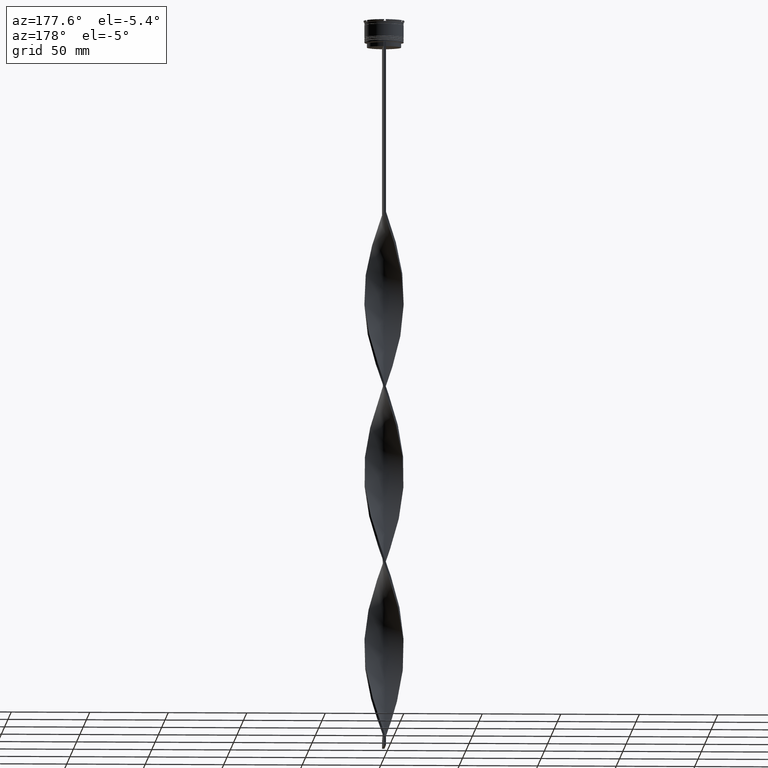
[diagram: clean part render]
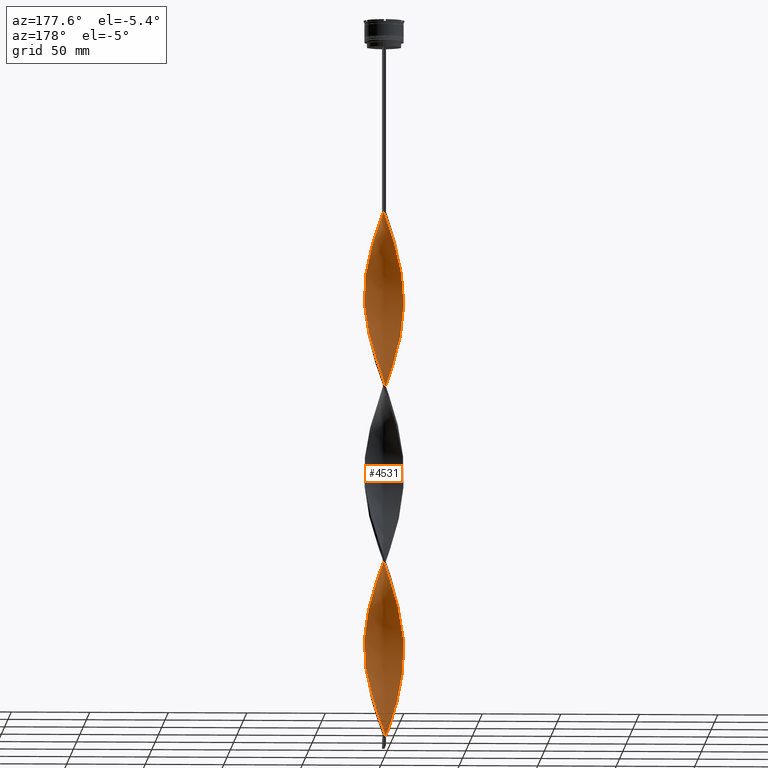
[diagram: same view with one face highlighted and labeled with its STEP entity id]
A machine part, auxiliary view. The second image highlights one B-rep face of the part: STEP entity #4531.
In plain terms, the highlighted face is a freeform B-spline surface patch.
Its self-contained STEP definition (entity closure, byte-faithful):
#15 = CARTESIAN_POINT ( 'NONE',  ( 10.11018854729806549, 7.388950367818355680, -199.3636363636363455 ) ) ;
#17 = CARTESIAN_POINT ( 'NONE',  ( -0.7500000000000017764, -12.50000000000000000, -459.0000000000000000 ) ) ;
#34 = CARTESIAN_POINT ( 'NONE',  ( -12.50000000000000000, 0.7500000000000009992, -179.0000000000000000 ) ) ;
#35 = CARTESIAN_POINT ( 'NONE',  ( -5.874911659039468326, -11.05883868218006505, -443.7272727272727479 ) ) ;
#53 = CARTESIAN_POINT ( 'NONE',  ( -1.929121149525765855, 12.40536724576414862, -130.6363636363636260 ) ) ;
#55 = CARTESIAN_POINT ( 'NONE',  ( 10.63865670754232617, 6.665855411790015950, -196.8181818181817846 ) ) ;
#58 = CARTESIAN_POINT ( 'NONE',  ( -7.388950367818358345, -10.11018854729806549, -438.6363636363636829 ) ) ;
#75 = CARTESIAN_POINT ( 'NONE',  ( 11.68196120168289553, -4.510463666007692218, -387.7272727272727479 ) ) ;
#77 = CARTESIAN_POINT ( 'NONE',  ( -12.20496158781229035, -2.802037230306997806, -413.1818181818181870 ) ) ;
#95 = CARTESIAN_POINT ( 'NONE',  ( -10.63865670754232795, 6.665855411790015062, -161.1818181818181870 ) ) ;
#96 = CARTESIAN_POINT ( 'NONE',  ( -3.674953311088235530, -12.00455592986042852, -334.2727272727272521 ) ) ;
#98 = CARTESIAN_POINT ( 'NONE',  ( -12.50000000000000000, 0.7500000000000009992, -403.0000000000000000 ) ) ;
#102 = CARTESIAN_POINT ( 'NONE',  ( -10.48293307345756986, -6.908166116216013286, -201.9090909090908781 ) ) ;
#117 = CARTESIAN_POINT ( 'NONE',  ( 11.05883868218006505, -5.874911659039469214, -275.7272727272726911 ) ) ;
#120 = CARTESIAN_POINT ( 'NONE',  ( 12.40536724576414862, -1.929121149525764967, -395.3636363636362603 ) ) ;
#127 = CARTESIAN_POINT ( 'NONE',  ( 6.127070068571584649, -10.92114977348146354, -255.3636363636363455 ) ) ;
#143 = CARTESIAN_POINT ( 'NONE',  ( 5.874911659039470102, 11.05883868218006505, -331.7272727272727479 ) ) ;
#145 = CARTESIAN_POINT ( 'NONE',  ( -6.908166116216016839, -10.48293307345756631, -324.0909090909090082 ) ) ;
#153 = CARTESIAN_POINT ( 'NONE',  ( 1.036569397005361992, -12.47950415221662368, -240.0909090909090651 ) ) ;
#158 = CARTESIAN_POINT ( 'NONE',  ( -10.48293307345756631, 6.908166116216014174, -268.0909090909090651 ) ) ;
#165 = ORIENTED_EDGE ( 'NONE', *, *, #1105, .F. ) ;
#166 = CARTESIAN_POINT ( 'NONE',  ( -0.1440176444849628479, 12.55364105866909874, -349.5454545454545610 ) ) ;
#168 = CARTESIAN_POINT ( 'NONE',  ( 4.241276690728744470, -11.78236275255014576, -357.1818181818181301 ) ) ;
#176 = CARTESIAN_POINT ( 'NONE',  ( -12.08570484828248759, 3.398585475168562908, -171.3636363636363171 ) ) ;
#182 = CARTESIAN_POINT ( 'NONE',  ( 2.802037230306997806, 12.20496158781229035, -224.8181818181818130 ) ) ;
#192 = CARTESIAN_POINT ( 'NONE',  ( 4.510463666007693107, -11.68196120168289553, -250.2727272727273089 ) ) ;
#204 = CARTESIAN_POINT ( 'NONE',  ( -12.50000000000000000, 0.7500000000000009992, -179.0000000000000000 ) ) ;
#212 = CARTESIAN_POINT ( 'NONE',  ( 11.05883868218006505, 5.874911659039468326, -194.2727272727272521 ) ) ;
#223 = CARTESIAN_POINT ( 'NONE',  ( 6.908166116216011510, -10.48293307345756809, -257.9090909090909349 ) ) ;
#233 = CARTESIAN_POINT ( 'NONE',  ( 1.644017644484960128, 12.44635894133090126, -344.4545454545453254 ) ) ;
#237 = CARTESIAN_POINT ( 'NONE',  ( 5.345974020927156012, 11.35936647350535367, -217.1818181818181586 ) ) ;
#245 = CARTESIAN_POINT ( 'NONE',  ( -1.929121149525765855, 12.40536724576414862, -354.6363636363635692 ) ) ;
#254 = CARTESIAN_POINT ( 'NONE',  ( 10.11018854729806904, -7.388950367818353904, -270.6363636363636829 ) ) ;
#259 = CARTESIAN_POINT ( 'NONE',  ( 2.802037230306997806, 12.20496158781229035, -448.8181818181818130 ) ) ;
#276 = CARTESIAN_POINT ( 'NONE',  ( -12.50000000000000000, 0.7500000000000009992, -403.0000000000000000 ) ) ;
#280 = CARTESIAN_POINT ( 'NONE',  ( 0.7500000000000002220, -12.50000000000000000, -347.0000000000000000 ) ) ;
#293 = CARTESIAN_POINT ( 'NONE',  ( 10.63865670754232617, 6.665855411790015950, -420.8181818181818130 ) ) ;
#296 = CARTESIAN_POINT ( 'NONE',  ( -6.127070068571584649, 10.92114977348146354, -367.3636363636363740 ) ) ;
#301 = CARTESIAN_POINT ( 'NONE',  ( 8.752571355081757432, -8.955724128969265507, -372.4545454545454959 ) ) ;
#316 = CARTESIAN_POINT ( 'NONE',  ( -12.00455592986043030, -3.674953311088229313, -415.7272727272726911 ) ) ;
#320 = CARTESIAN_POINT ( 'NONE',  ( 9.581720387053804799, 8.112045323846697187, -425.9090909090908212 ) ) ;
#336 = CARTESIAN_POINT ( 'NONE',  ( -3.398585475168561132, 12.08570484828248759, -242.6363636363635976 ) ) ;
#340 = CARTESIAN_POINT ( 'NONE',  ( 7.388950367818355680, -10.11018854729806726, -367.3636363636363740 ) ) ;
#363 = CARTESIAN_POINT ( 'NONE',  ( 8.752571355081757432, -8.955724128969265507, -148.4545454545454390 ) ) ;
#366 = CARTESIAN_POINT ( 'NONE',  ( -10.63865670754232795, 6.665855411790015062, -385.1818181818181301 ) ) ;
#368 =( BOUNDED_CURVE ( )  B_SPLINE_CURVE ( 2, ( #2566, #3986, #3615, #1243, #2043, #537, #2692, #897, #3747, #2758, #4188, #4508, #918, #1995, #2735, #2340, #943, #2312, #2665, #561, #1296, #3800, #4089, #4161, #1603, #867, #588, #610, #212, #3395, #1949, #2385, #972, #2021, #3445, #3467, #3419, #237, #1678, #4458, #182, #1657, #2415, #1320, #3103, #3722, #4533, #3826, #3008, #1580, #3082, #4435, #4115, #1222, #2714, #513, #3373, #158, #3034, #1971, #1627, #3056, #4485, #1274, #4139, #2363, #3773, #4583, #4229, #2452, #1435, #2867, #3187, #4250, #4212, #2478, #1368, #1741, #2845, #2801, #4557, #3124, #3872, #1699, #3532, #655, #1411, #4601, #280, #2064, #2085, #3490, #2131, #1010, #3514, #1724, #340, #4274, #301, #4623, #1759, #3167, #633, #4649, #2434, #1390, #3150, #2820, #4296, #2782, #3852, #1076, #1054, #1032, #3895, #2497, #677, #2109, #3917, #320, #2519, #696, #3552, #1780, #3212, #3939, #719, #2160, #259, #1347, #992, #1191, #3597 ),
 .UNSPECIFIED., .F., .T. ) 
 B_SPLINE_CURVE_WITH_KNOTS ( ( 3, 2, 2, 2, 2, 2, 2, 2, 2, 2, 2, 2, 2, 2, 2, 2, 2, 2, 2, 2, 2, 2, 2, 2, 2, 2, 2, 2, 2, 2, 2, 2, 2, 2, 2, 2, 2, 2, 2, 2, 2, 2, 2, 2, 2, 2, 2, 2, 2, 2, 2, 2, 2, 2, 2, 2, 2, 2, 2, 2, 2, 2, 2, 2, 2, 2, 3 ),
 ( 0.000000000000000000, 0.01136363636363636222, 0.02272727272727272443, 0.03409090909090908839, 0.04545454545454544887, 0.05681818181818181629, 0.06818181818181817677, 0.07954545454545454419, 0.09090909090909089774, 0.1022727272727272790, 0.1136363636363636326, 0.1250000000000000000, 0.1363636363636363535, 0.1477272727272727348, 0.1590909090909090884, 0.1704545454545454419, 0.1818181818181817955, 0.1931818181818182045, 0.2045454545454545581, 0.2159090909090909116, 0.2272727272727272652, 0.2386363636363636465, 0.2500000000000000000, 0.2613636363636363535, 0.2727272727272727071, 0.2840909090909091161, 0.2954545454545454697, 0.3068181818181818232, 0.3181818181818181768, 0.3295454545454545303, 0.3409090909090908839, 0.3522727272727272929, 0.3636363636363635909, 0.3750000000000000000, 0.3863636363636364091, 0.3977272727272727071, 0.4090909090909091161, 0.4204545454545454697, 0.4318181818181818232, 0.4431818181818181768, 0.4545454545454545303, 0.4659090909090908839, 0.4772727272727272929, 0.4886363636363635909, 0.5000000000000000000, 0.5113636363636363535, 0.5227272727272727071, 0.5340909090909090606, 0.5454545454545454142, 0.5568181818181817677, 0.5681818181818182323, 0.5795454545454545858, 0.5909090909090909394, 0.6022727272727272929, 0.6136363636363636465, 0.6250000000000000000, 0.6363636363636363535, 0.6477272727272727071, 0.6590909090909090606, 0.6704545454545454142, 0.6818181818181817677, 0.6931818181818182323, 0.7045454545454545858, 0.7159090909090909394, 0.7272727272727271819, 0.7386363636363636465, 0.7500000000000000000 ),
 .UNSPECIFIED. ) 
 CURVE ( )  GEOMETRIC_REPRESENTATION_ITEM ( )  RATIONAL_B_SPLINE_CURVE ( ( 1.000000000000000000, 0.9974521146102535152, 1.000000000000000000, 0.9974521146102535152, 1.000000000000000000, 0.9974521146102535152, 1.000000000000000000, 0.9974521146102535152, 1.000000000000000000, 0.9974521146102535152, 1.000000000000000000, 0.9974521146102535152, 1.000000000000000000, 0.9974521146102535152, 1.000000000000000000, 0.9974521146102535152, 1.000000000000000000, 0.9974521146102535152, 1.000000000000000000, 0.9974521146102535152, 1.000000000000000000, 0.9974521146102535152, 1.000000000000000000, 0.9974521146102535152, 1.000000000000000000, 0.9974521146102535152, 1.000000000000000000, 0.9974521146102535152, 1.000000000000000000, 0.9974521146102535152, 1.000000000000000000, 0.9974521146102535152, 1.000000000000000000, 0.9974521146102535152, 1.000000000000000000, 0.9974521146102535152, 1.000000000000000000, 0.9974521146102535152, 1.000000000000000000, 0.9974521146102535152, 1.000000000000000000, 0.9974521146102535152, 1.000000000000000000, 0.9974521146102535152, 1.000000000000000000, 0.9974521146102535152, 1.000000000000000000, 0.9974521146102535152, 1.000000000000000000, 0.9974521146102535152, 1.000000000000000000, 0.9974521146102535152, 1.000000000000000000, 0.9974521146102535152, 1.000000000000000000, 0.9974521146102535152, 1.000000000000000000, 0.9974521146102535152, 1.000000000000000000, 0.9974521146102535152, 1.000000000000000000, 0.9974521146102535152, 1.000000000000000000, 0.9974521146102535152, 1.000000000000000000, 0.9974521146102535152, 1.000000000000000000, 0.9974521146102535152, 1.000000000000000000, 0.9974521146102535152, 1.000000000000000000, 0.9974521146102535152, 1.000000000000000000, 0.9974521146102535152, 1.000000000000000000, 0.9974521146102535152, 1.000000000000000000, 0.9974521146102535152, 1.000000000000000000, 0.9974521146102535152, 1.000000000000000000, 0.9974521146102535152, 1.000000000000000000, 0.9974521146102535152, 1.000000000000000000, 0.9974521146102535152, 1.000000000000000000, 0.9974521146102535152, 1.000000000000000000, 0.9974521146102535152, 1.000000000000000000, 0.9974521146102535152, 1.000000000000000000, 0.9974521146102535152, 1.000000000000000000, 0.9974521146102535152, 1.000000000000000000, 0.9974521146102535152, 1.000000000000000000, 0.9974521146102535152, 1.000000000000000000, 0.9974521146102535152, 1.000000000000000000, 0.9974521146102535152, 1.000000000000000000, 0.9974521146102535152, 1.000000000000000000, 0.9974521146102535152, 1.000000000000000000, 0.9974521146102535152, 1.000000000000000000, 0.9974521146102535152, 1.000000000000000000, 0.9974521146102535152, 1.000000000000000000, 0.9974521146102535152, 1.000000000000000000, 0.9974521146102535152, 1.000000000000000000, 0.9974521146102535152, 1.000000000000000000, 0.9974521146102535152, 1.000000000000000000, 0.9974521146102535152, 1.000000000000000000, 0.9974521146102535152, 1.000000000000000000, 0.9974521146102535152, 1.000000000000000000, 0.9974521146102535152, 1.000000000000000000, 0.9974521146102535152, 1.000000000000000000 ) ) 
 REPRESENTATION_ITEM ( '' )  );
#384 = CARTESIAN_POINT ( 'NONE',  ( -2.521301559826761629, 12.26603189480669798, -240.0909090909090651 ) ) ;
#387 = CARTESIAN_POINT ( 'NONE',  ( -3.398585475168564241, -12.08570484828248759, -451.3636363636364308 ) ) ;
#400 = CARTESIAN_POINT ( 'NONE',  ( -0.7500000000000017764, -12.50000000000000000, -459.0000000000000000 ) ) ;
#403 = CARTESIAN_POINT ( 'NONE',  ( -5.345974020927152459, 11.35936647350535722, -140.8181818181818130 ) ) ;
#404 = CARTESIAN_POINT ( 'NONE',  ( 11.68196120168289553, -4.510463666007692218, -163.7272727272727195 ) ) ;
#406 = CARTESIAN_POINT ( 'NONE',  ( -11.35936647350535544, -5.345974020927153347, -420.8181818181818130 ) ) ;
#428 = CARTESIAN_POINT ( 'NONE',  ( 0.1440176444849638193, 12.55364105866909874, -232.4545454545454390 ) ) ;
#431 = CARTESIAN_POINT ( 'NONE',  ( -12.26603189480669442, 2.521301559826763850, -397.9090909090909349 ) ) ;
#449 = CARTESIAN_POINT ( 'NONE',  ( -9.581720387053804799, 8.112045323846697187, -156.0909090909090935 ) ) ;
#450 = CARTESIAN_POINT ( 'NONE',  ( -8.955724128969263731, -8.752571355081759208, -316.4545454545454390 ) ) ;
#452 = CARTESIAN_POINT ( 'NONE',  ( -5.874911659039468326, -11.05883868218006505, -443.7272727272727479 ) ) ;
#457 = CARTESIAN_POINT ( 'NONE',  ( -2.802037230306997806, 12.20496158781229035, -133.1818181818181870 ) ) ;
#473 = CARTESIAN_POINT ( 'NONE',  ( 8.752571355081753879, 8.955724128969267284, -321.5454545454545610 ) ) ;
#475 = CARTESIAN_POINT ( 'NONE',  ( 11.35936647350535722, -5.345974020927153347, -385.1818181818180733 ) ) ;
#480 = CARTESIAN_POINT ( 'NONE',  ( 1.929121149525763190, -12.40536724576414862, -242.6363636363635976 ) ) ;
#496 = CARTESIAN_POINT ( 'NONE',  ( 8.112045323846698963, 9.581720387053801247, -324.0909090909090651 ) ) ;
#499 = CARTESIAN_POINT ( 'NONE',  ( -11.47902065681779860, -5.083967906288925143, -303.7272727272727479 ) ) ;
#513 = CARTESIAN_POINT ( 'NONE',  ( -9.393097386316817676, 8.329727870884726215, -262.9999999999999432 ) ) ;
#522 = CARTESIAN_POINT ( 'NONE',  ( -4.241276690728744470, -11.78236275255014576, -224.8181818181818130 ) ) ;
#525 = CARTESIAN_POINT ( 'NONE',  ( -0.1440176444849599058, -12.55364105866909874, -344.4545454545453254 ) ) ;
#532 = CARTESIAN_POINT ( 'NONE',  ( -12.44635894133090126, 1.644017644484963236, -176.4545454545454390 ) ) ;
#537 = CARTESIAN_POINT ( 'NONE',  ( 5.083967906288925143, -11.47902065681779860, -135.7272727272726911 ) ) ;
#546 = CARTESIAN_POINT ( 'NONE',  ( 10.63865670754232440, -6.665855411790017726, -273.1818181818181870 ) ) ;
#548 = CARTESIAN_POINT ( 'NONE',  ( 5.874911659039469214, -11.05883868218006505, -362.2727272727273089 ) ) ;
#555 = CARTESIAN_POINT ( 'NONE',  ( -10.11018854729806549, 7.388950367818356568, -158.6363636363636260 ) ) ;
#561 = CARTESIAN_POINT ( 'NONE',  ( 12.40536724576414862, -1.929121149525764967, -171.3636363636363171 ) ) ;
#571 = CARTESIAN_POINT ( 'NONE',  ( -11.68196120168289553, -4.510463666007690442, -194.2727272727272521 ) ) ;
#581 = CARTESIAN_POINT ( 'NONE',  ( 5.874911659039470102, 11.05883868218006505, -331.7272727272727479 ) ) ;
#588 = CARTESIAN_POINT ( 'NONE',  ( 11.78236275255014576, 4.241276690728744470, -189.1818181818181870 ) ) ;
#598 = CARTESIAN_POINT ( 'NONE',  ( -6.908166116216011510, 10.48293307345756809, -369.9090909090909349 ) ) ;
#606 = CARTESIAN_POINT ( 'NONE',  ( 6.665855411790017726, 10.63865670754232440, -329.1818181818180733 ) ) ;
#610 = CARTESIAN_POINT ( 'NONE',  ( 11.47902065681779860, 5.083967906288924254, -191.7272727272727479 ) ) ;
#628 = CARTESIAN_POINT ( 'NONE',  ( 8.752571355081753879, 8.955724128969267284, -321.5454545454545610 ) ) ;
#633 = CARTESIAN_POINT ( 'NONE',  ( 10.92114977348146354, -6.127070068571585537, -382.6363636363636829 ) ) ;
#644 = CARTESIAN_POINT ( 'NONE',  ( 12.08570484828248759, 3.398585475168564685, -410.6363636363636260 ) ) ;
#650 = CARTESIAN_POINT ( 'NONE',  ( 8.955724128969263731, -8.752571355081759208, -265.5454545454545041 ) ) ;
#655 = CARTESIAN_POINT ( 'NONE',  ( -1.929121149525772960, -12.40536724576414684, -339.3636363636363171 ) ) ;
#674 = CARTESIAN_POINT ( 'NONE',  ( -12.40536724576414862, -1.929121149525766965, -410.6363636363636260 ) ) ;
#677 = CARTESIAN_POINT ( 'NONE',  ( 11.05883868218006505, 5.874911659039468326, -418.2727272727273089 ) ) ;
#693 = CARTESIAN_POINT ( 'NONE',  ( 5.874911659039469214, -11.05883868218006505, -138.2727272727272805 ) ) ;
#696 = CARTESIAN_POINT ( 'NONE',  ( 8.329727870884726215, 9.393097386316817676, -430.9999999999999432 ) ) ;
#712 = CARTESIAN_POINT ( 'NONE',  ( -12.47950415221662368, -1.036569397005362880, -184.0909090909090935 ) ) ;
#713 = CARTESIAN_POINT ( 'NONE',  ( 4.510463666007690442, 11.68196120168289553, -219.7272727272727195 ) ) ;
#719 = CARTESIAN_POINT ( 'NONE',  ( 4.510463666007690442, 11.68196120168289553, -443.7272727272727479 ) ) ;
#739 = CARTESIAN_POINT ( 'NONE',  ( -11.47902065681779860, 5.083967906288926031, -166.2727272727272521 ) ) ;
#740 = CARTESIAN_POINT ( 'NONE',  ( 12.40536724576414862, -1.929121149525764967, -171.3636363636363171 ) ) ;
#763 = CARTESIAN_POINT ( 'NONE',  ( -8.329727870884726215, 9.393097386316819453, -150.9999999999999716 ) ) ;
#764 = CARTESIAN_POINT ( 'NONE',  ( 12.50000000000000000, 0.7499999999999994449, -179.0000000000000000 ) ) ;
#766 = CARTESIAN_POINT ( 'NONE',  ( -5.083967906288923366, -11.47902065681780037, -446.2727272727271952 ) ) ;
#780 = CARTESIAN_POINT ( 'NONE',  ( -4.510463666007691330, 11.68196120168289553, -138.2727272727272805 ) ) ;
#783 = CARTESIAN_POINT ( 'NONE',  ( 1.929121149525765855, 12.40536724576414862, -227.3636363636363171 ) ) ;
#804 = CARTESIAN_POINT ( 'NONE',  ( -0.1440176444849628479, 12.55364105866909874, -125.5454545454545467 ) ) ;
#806 = CARTESIAN_POINT ( 'NONE',  ( -9.581720387053806576, -8.112045323846697187, -313.9090909090908212 ) ) ;
#814 = CARTESIAN_POINT ( 'NONE',  ( -12.55364105866909874, -0.1440176444849616544, -181.5454545454545041 ) ) ;
#827 = CARTESIAN_POINT ( 'NONE',  ( 10.48293307345756986, 6.908166116216011510, -313.9090909090908781 ) ) ;
#829 = CARTESIAN_POINT ( 'NONE',  ( -12.08570484828248759, -3.398585475168565573, -298.6363636363635692 ) ) ;
#834 = CARTESIAN_POINT ( 'NONE',  ( 0.7500000000000002220, -12.50000000000000000, -123.0000000000000000 ) ) ;
#836 = CARTESIAN_POINT ( 'NONE',  ( -1.644017644484964125, -12.44635894133090126, -232.4545454545454390 ) ) ;
#851 = CARTESIAN_POINT ( 'NONE',  ( 12.50000000000000000, -0.7500000000000025535, -291.0000000000000568 ) ) ;
#853 = CARTESIAN_POINT ( 'NONE',  ( 12.47950415221662368, -1.036569397005364435, -397.9090909090909349 ) ) ;
#860 = CARTESIAN_POINT ( 'NONE',  ( -5.083967906288923366, -11.47902065681780037, -222.2727272727272805 ) ) ;
#867 = CARTESIAN_POINT ( 'NONE',  ( 12.08570484828248759, 3.398585475168565129, -186.6363636363636260 ) ) ;
#868 = ORIENTED_EDGE ( 'NONE', *, *, #3393, .F. ) ;
#880 = CARTESIAN_POINT ( 'NONE',  ( 2.521301559826766070, 12.26603189480669442, -341.9090909090909349 ) ) ;
#884 = CARTESIAN_POINT ( 'NONE',  ( -4.510463666007692218, -11.68196120168289553, -331.7272727272727479 ) ) ;
#890 = CARTESIAN_POINT ( 'NONE',  ( -7.618946993550370195, 9.938015229887191992, -148.4545454545454390 ) ) ;
#897 = CARTESIAN_POINT ( 'NONE',  ( 6.665855411790014173, -10.63865670754232795, -140.8181818181818130 ) ) ;
#904 = CARTESIAN_POINT ( 'NONE',  ( -11.35936647350535544, -5.345974020927153347, -196.8181818181818130 ) ) ;
#906 = CARTESIAN_POINT ( 'NONE',  ( 8.112045323846697187, -9.581720387053804799, -369.9090909090908781 ) ) ;
#909 = VERTEX_POINT ( 'NONE', #834 ) ;
#918 = CARTESIAN_POINT ( 'NONE',  ( 9.938015229887191992, -7.618946993550370195, -153.5454545454545325 ) ) ;
#926 = CARTESIAN_POINT ( 'NONE',  ( 8.955724128969263731, -8.752571355081759208, -265.5454545454545041 ) ) ;
#937 = CARTESIAN_POINT ( 'NONE',  ( 9.581720387053803023, -8.112045323846698963, -268.0909090909090082 ) ) ;
#943 = CARTESIAN_POINT ( 'NONE',  ( 11.68196120168289553, -4.510463666007692218, -163.7272727272727195 ) ) ;
#954 = CARTESIAN_POINT ( 'NONE',  ( -8.329727870884726215, 9.393097386316819453, -374.9999999999999432 ) ) ;
#956 = CARTESIAN_POINT ( 'NONE',  ( 1.929121149525765855, 12.40536724576414862, -451.3636363636364877 ) ) ;
#964 = CARTESIAN_POINT ( 'NONE',  ( -6.908166116216011510, 10.48293307345756986, -369.9090909090908781 ) ) ;
#972 = CARTESIAN_POINT ( 'NONE',  ( 8.955724128969265507, 8.752571355081755655, -204.4545454545454390 ) ) ;
#983 = CARTESIAN_POINT ( 'NONE',  ( 10.11018854729806549, 7.388950367818355680, -423.3636363636363740 ) ) ;
#987 = CARTESIAN_POINT ( 'NONE',  ( -10.63865670754232795, 6.665855411790015950, -385.1818181818180733 ) ) ;
#992 = CARTESIAN_POINT ( 'NONE',  ( 1.036569397005364879, 12.47950415221662368, -453.9090909090909349 ) ) ;
#1007 = CARTESIAN_POINT ( 'NONE',  ( -8.955724128969265507, 8.752571355081757432, -377.5454545454545610 ) ) ;
#1010 = CARTESIAN_POINT ( 'NONE',  ( 5.083967906288925143, -11.47902065681779860, -359.7272727272726911 ) ) ;
#1028 = CARTESIAN_POINT ( 'NONE',  ( -12.08570484828248759, 3.398585475168562908, -395.3636363636362603 ) ) ;
#1032 = CARTESIAN_POINT ( 'NONE',  ( 12.08570484828248759, 3.398585475168565129, -410.6363636363635692 ) ) ;
#1050 = CARTESIAN_POINT ( 'NONE',  ( 12.26603189480669798, 2.521301559826762517, -184.0909090909090935 ) ) ;
#1054 = CARTESIAN_POINT ( 'NONE',  ( 12.26603189480669798, 2.521301559826762517, -408.0909090909091219 ) ) ;
#1070 = CARTESIAN_POINT ( 'NONE',  ( -3.398585475168563796, -12.08570484828248759, -451.3636363636364877 ) ) ;
#1076 = CARTESIAN_POINT ( 'NONE',  ( 12.44635894133090126, 1.644017644484961904, -405.5454545454545610 ) ) ;
#1090 = CARTESIAN_POINT ( 'NONE',  ( -12.20496158781229035, -2.802037230306997806, -189.1818181818181870 ) ) ;
#1091 = CARTESIAN_POINT ( 'NONE',  ( 12.44635894133090126, 1.644017644484961904, -181.5454545454545041 ) ) ;
#1093 = CARTESIAN_POINT ( 'NONE',  ( -11.78236275255014576, 4.241276690728745358, -392.8181818181818699 ) ) ;
#1105 = EDGE_CURVE ( 'NONE', #3067, #2829, #2946, .T. ) ;
#1119 = CARTESIAN_POINT ( 'NONE',  ( 4.241276690728744470, -11.78236275255014576, -133.1818181818181870 ) ) ;
#1140 = CARTESIAN_POINT ( 'NONE',  ( 9.581720387053804799, 8.112045323846698963, -201.9090909090908781 ) ) ;
#1142 = CARTESIAN_POINT ( 'NONE',  ( -11.05883868218006505, 5.874911659039470102, -387.7272727272727479 ) ) ;
#1160 = CARTESIAN_POINT ( 'NONE',  ( -12.26603189480669798, -2.521301559826760741, -296.0909090909090651 ) ) ;
#1181 = CARTESIAN_POINT ( 'NONE',  ( -12.08570484828248759, 3.398585475168563352, -171.3636363636363171 ) ) ;
#1183 = CARTESIAN_POINT ( 'NONE',  ( 10.48293307345756986, -6.908166116216013286, -380.0909090909090651 ) ) ;
#1189 = EDGE_CURVE ( 'NONE', #909, #3850, #368, .T. ) ;
#1191 = CARTESIAN_POINT ( 'NONE',  ( 0.1440176444849638193, 12.55364105866909874, -456.4545454545454390 ) ) ;
#1192 = CARTESIAN_POINT ( 'NONE',  ( -8.955724128969265507, 8.752571355081757432, -153.5454545454545325 ) ) ;
#1208 = CARTESIAN_POINT ( 'NONE',  ( -9.393097386316819453, -8.329727870884724439, -207.0000000000000284 ) ) ;
#1210 = CARTESIAN_POINT ( 'NONE',  ( 12.44635894133090126, 1.644017644484961904, -405.5454545454545610 ) ) ;
#1217 = CARTESIAN_POINT ( 'NONE',  ( 3.674953311088231089, -12.00455592986043030, -247.7272727272726911 ) ) ;
#1222 = CARTESIAN_POINT ( 'NONE',  ( -8.112045323846695410, 9.581720387053804799, -257.9090909090909349 ) ) ;
#1231 = CARTESIAN_POINT ( 'NONE',  ( 12.00455592986043030, 3.674953311088230201, -303.7272727272727479 ) ) ;
#1233 = CARTESIAN_POINT ( 'NONE',  ( -11.05883868218006683, -5.874911659039464773, -306.2727272727272521 ) ) ;
#1238 = CARTESIAN_POINT ( 'NONE',  ( -10.92114977348146354, -6.127070068571584649, -199.3636363636363455 ) ) ;
#1243 = CARTESIAN_POINT ( 'NONE',  ( 3.398585475168564241, -12.08570484828248759, -130.6363636363636260 ) ) ;
#1256 = CARTESIAN_POINT ( 'NONE',  ( 10.11018854729806904, -7.388950367818353904, -270.6363636363636829 ) ) ;
#1259 = CARTESIAN_POINT ( 'NONE',  ( 3.398585475168563796, -12.08570484828248759, -354.6363636363635692 ) ) ;
#1266 = CARTESIAN_POINT ( 'NONE',  ( -2.521301559826764294, -12.26603189480669442, -229.9090909090909065 ) ) ;
#1274 = CARTESIAN_POINT ( 'NONE',  ( -12.40536724576414684, 1.929121149525772294, -283.3636363636363171 ) ) ;
#1283 = CARTESIAN_POINT ( 'NONE',  ( 12.08570484828248581, -3.398585475168570458, -283.3636363636363171 ) ) ;
#1292 = CARTESIAN_POINT ( 'NONE',  ( -1.036569397005364657, 12.47950415221662368, -128.0909090909090935 ) ) ;
#1296 = CARTESIAN_POINT ( 'NONE',  ( 12.47950415221662368, -1.036569397005364435, -173.9090909090909065 ) ) ;
#1303 = CARTESIAN_POINT ( 'NONE',  ( 10.92114977348146709, 6.127070068571577544, -311.3636363636363740 ) ) ;
#1307 = CARTESIAN_POINT ( 'NONE',  ( 3.674953311088228425, 12.00455592986043207, -446.2727272727271952 ) ) ;
#1316 = CARTESIAN_POINT ( 'NONE',  ( 12.55364105866909874, 0.1440176444849655957, -293.5454545454544473 ) ) ;
#1320 = CARTESIAN_POINT ( 'NONE',  ( 0.1440176444849638193, 12.55364105866909874, -232.4545454545454390 ) ) ;
#1338 = CARTESIAN_POINT ( 'NONE',  ( 4.241276690728745358, 11.78236275255014576, -336.8181818181818130 ) ) ;
#1347 = CARTESIAN_POINT ( 'NONE',  ( 1.929121149525765855, 12.40536724576414862, -451.3636363636364308 ) ) ;
#1360 = CARTESIAN_POINT ( 'NONE',  ( 8.329727870884726215, 9.393097386316817676, -430.9999999999999432 ) ) ;
#1363 = CARTESIAN_POINT ( 'NONE',  ( 11.05883868218006505, -5.874911659039469214, -275.7272727272726911 ) ) ;
#1368 = CARTESIAN_POINT ( 'NONE',  ( -8.955724128969263731, -8.752571355081759208, -316.4545454545454390 ) ) ;
#1382 = CARTESIAN_POINT ( 'NONE',  ( 0.1440176444849638193, 12.55364105866909874, -456.4545454545454959 ) ) ;
#1387 = CARTESIAN_POINT ( 'NONE',  ( -11.05883868218006505, 5.874911659039470102, -387.7272727272727479 ) ) ;
#1390 = CARTESIAN_POINT ( 'NONE',  ( 12.00455592986043030, -3.674953311088231089, -390.2727272727272521 ) ) ;
#1407 = CARTESIAN_POINT ( 'NONE',  ( -1.644017644484961016, 12.44635894133090126, -237.5454545454545325 ) ) ;
#1411 = CARTESIAN_POINT ( 'NONE',  ( -1.036569397005366655, -12.47950415221662368, -341.9090909090909349 ) ) ;
#1430 = CARTESIAN_POINT ( 'NONE',  ( 8.329727870884726215, 9.393097386316817676, -207.0000000000000284 ) ) ;
#1435 = CARTESIAN_POINT ( 'NONE',  ( -11.78236275255014576, -4.241276690728740029, -301.1818181818182438 ) ) ;
#1448 = CARTESIAN_POINT ( 'NONE',  ( -8.955724128969265507, 8.752571355081757432, -153.5454545454545325 ) ) ;
#1451 = CARTESIAN_POINT ( 'NONE',  ( 6.908166116216014174, 10.48293307345756809, -212.0909090909090651 ) ) ;
#1470 = CARTESIAN_POINT ( 'NONE',  ( -12.55364105866909874, -0.1440176444849616544, -181.5454545454545041 ) ) ;
#1472 = CARTESIAN_POINT ( 'NONE',  ( 3.398585475168563796, -12.08570484828248759, -130.6363636363636545 ) ) ;
#1475 = CARTESIAN_POINT ( 'NONE',  ( -8.752571355081759208, -8.955724128969263731, -433.5454545454545610 ) ) ;
#1496 = CARTESIAN_POINT ( 'NONE',  ( -2.802037230306997806, 12.20496158781229035, -133.1818181818181870 ) ) ;
#1497 = CARTESIAN_POINT ( 'NONE',  ( 6.665855411790015062, -10.63865670754232795, -140.8181818181818130 ) ) ;
#1499 = CARTESIAN_POINT ( 'NONE',  ( -4.241276690728744470, -11.78236275255014576, -448.8181818181818130 ) ) ;
#1509 = CARTESIAN_POINT ( 'NONE',  ( -0.7499999999999996669, 4.166666666666667851, -459.0000000000000000 ) ) ;
#1515 = CARTESIAN_POINT ( 'NONE',  ( -6.908166116216011510, 10.48293307345756809, -145.9090909090909065 ) ) ;
#1516 = CARTESIAN_POINT ( 'NONE',  ( 12.00455592986043030, -3.674953311088231089, -390.2727272727272521 ) ) ;
#1520 = CARTESIAN_POINT ( 'NONE',  ( -12.40536724576414862, -1.929121149525766965, -410.6363636363635692 ) ) ;
#1537 = CARTESIAN_POINT ( 'NONE',  ( -11.05883868218006505, 5.874911659039470102, -163.7272727272727195 ) ) ;
#1538 = CARTESIAN_POINT ( 'NONE',  ( -2.802037230306999582, -12.20496158781229035, -336.8181818181818130 ) ) ;
#1540 = CARTESIAN_POINT ( 'NONE',  ( -8.112045323846697187, -9.581720387053803023, -436.0909090909090651 ) ) ;
#1546 = CARTESIAN_POINT ( 'NONE',  ( -9.393097386316819453, -8.329727870884724439, -207.0000000000000284 ) ) ;
#1561 = CARTESIAN_POINT ( 'NONE',  ( -1.644017644484964125, -12.44635894133090126, -232.4545454545454390 ) ) ;
#1566 = CARTESIAN_POINT ( 'NONE',  ( -10.48293307345756809, 6.908166116216014174, -268.0909090909090082 ) ) ;
#1574 = CARTESIAN_POINT ( 'NONE',  ( -4.510463666007691330, 11.68196120168289553, -138.2727272727272805 ) ) ;
#1580 = CARTESIAN_POINT ( 'NONE',  ( -5.083967906288926031, 11.47902065681779860, -247.7272727272727195 ) ) ;
#1587 = CARTESIAN_POINT ( 'NONE',  ( 5.083967906288930472, 11.47902065681779682, -334.2727272727272521 ) ) ;
#1590 = CARTESIAN_POINT ( 'NONE',  ( -12.44635894133090126, -1.644017644484965679, -293.5454545454544473 ) ) ;
#1596 = CARTESIAN_POINT ( 'NONE',  ( 4.510463666007693107, -11.68196120168289553, -250.2727272727273089 ) ) ;
#1603 = CARTESIAN_POINT ( 'NONE',  ( 12.26603189480669798, 2.521301559826762517, -184.0909090909090935 ) ) ;
#1613 = CARTESIAN_POINT ( 'NONE',  ( -1.036569397005364657, 12.47950415221662368, -352.0909090909091219 ) ) ;
#1616 = CARTESIAN_POINT ( 'NONE',  ( 5.083967906288925143, -11.47902065681779860, -359.7272727272726343 ) ) ;
#1627 = CARTESIAN_POINT ( 'NONE',  ( -11.68196120168289553, 4.510463666007691330, -275.7272727272726911 ) ) ;
#1641 = CARTESIAN_POINT ( 'NONE',  ( 8.329727870884724439, -9.393097386316819453, -262.9999999999999432 ) ) ;
#1657 = CARTESIAN_POINT ( 'NONE',  ( 1.929121149525765855, 12.40536724576414862, -227.3636363636363455 ) ) ;
#1666 = CARTESIAN_POINT ( 'NONE',  ( 2.802037230306994253, -12.20496158781229035, -245.1818181818181870 ) ) ;
#1674 = CARTESIAN_POINT ( 'NONE',  ( 2.521301559826766070, 12.26603189480669442, -341.9090909090909349 ) ) ;
#1678 = CARTESIAN_POINT ( 'NONE',  ( 4.510463666007690442, 11.68196120168289553, -219.7272727272727195 ) ) ;
#1685 = CARTESIAN_POINT ( 'NONE',  ( -2.802037230306997806, 12.20496158781229035, -357.1818181818181301 ) ) ;
#1694 = CARTESIAN_POINT ( 'NONE',  ( 11.47902065681779682, -5.083967906288929584, -278.2727272727271952 ) ) ;
#1699 = CARTESIAN_POINT ( 'NONE',  ( -3.674953311088235530, -12.00455592986042852, -334.2727272727272521 ) ) ;
#1710 = CARTESIAN_POINT ( 'NONE',  ( -0.7499999999999986677, 12.50000000000000000, -459.0000000000000000 ) ) ;
#1719 = CARTESIAN_POINT ( 'NONE',  ( -8.329727870884726215, 9.393097386316819453, -374.9999999999999432 ) ) ;
#1724 = CARTESIAN_POINT ( 'NONE',  ( 6.665855411790014173, -10.63865670754232795, -364.8181818181818130 ) ) ;
#1735 = CARTESIAN_POINT ( 'NONE',  ( 6.908166116216014174, 10.48293307345756809, -436.0909090909091219 ) ) ;
#1738 = CARTESIAN_POINT ( 'NONE',  ( -9.581720387053804799, 8.112045323846698963, -380.0909090909090651 ) ) ;
#1741 = CARTESIAN_POINT ( 'NONE',  ( -8.329727870884727992, -9.393097386316815900, -319.0000000000000000 ) ) ;
#1746 = CARTESIAN_POINT ( 'NONE',  ( 0.7500000000000002220, 12.50000000000000000, -123.0000000000000000 ) ) ;
#1756 = CARTESIAN_POINT ( 'NONE',  ( 3.398585475168570902, 12.08570484828248581, -339.3636363636362603 ) ) ;
#1759 = CARTESIAN_POINT ( 'NONE',  ( 9.938015229887191992, -7.618946993550370195, -377.5454545454545610 ) ) ;
#1776 = CARTESIAN_POINT ( 'NONE',  ( -4.241276690728740917, 11.78236275255014576, -245.1818181818181870 ) ) ;
#1780 = CARTESIAN_POINT ( 'NONE',  ( 6.908166116216014174, 10.48293307345756631, -436.0909090909090651 ) ) ;
#1800 = CARTESIAN_POINT ( 'NONE',  ( -6.127070068571584649, 10.92114977348146354, -143.3636363636363740 ) ) ;
#1801 = CARTESIAN_POINT ( 'NONE',  ( 12.20496158781229035, -2.802037230306999582, -168.8181818181818130 ) ) ;
#1819 = CARTESIAN_POINT ( 'NONE',  ( 10.92114977348146354, -6.127070068571585537, -158.6363636363636260 ) ) ;
#1837 = CARTESIAN_POINT ( 'NONE',  ( -10.11018854729806549, 7.388950367818356568, -158.6363636363636260 ) ) ;
#1838 = CARTESIAN_POINT ( 'NONE',  ( 12.08570484828248759, 3.398585475168564685, -186.6363636363636260 ) ) ;
#1841 = CARTESIAN_POINT ( 'NONE',  ( -11.68196120168289553, -4.510463666007690442, -418.2727272727273089 ) ) ;
#1863 = CARTESIAN_POINT ( 'NONE',  ( -0.7499999999999986677, 12.50000000000000000, -235.0000000000000000 ) ) ;
#1866 = CARTESIAN_POINT ( 'NONE',  ( -12.08570484828248759, 3.398585475168563352, -395.3636363636363171 ) ) ;
#1885 = CARTESIAN_POINT ( 'NONE',  ( -9.393097386316817676, 8.329727870884726215, -262.9999999999999432 ) ) ;
#1904 = CARTESIAN_POINT ( 'NONE',  ( 12.26603189480669442, -2.521301559826764738, -285.9090909090908781 ) ) ;
#1906 = CARTESIAN_POINT ( 'NONE',  ( 0.7500000000000002220, -12.50000000000000000, -347.0000000000000000 ) ) ;
#1913 = CARTESIAN_POINT ( 'NONE',  ( 2.802037230306994253, -12.20496158781229035, -245.1818181818181870 ) ) ;
#1932 = CARTESIAN_POINT ( 'NONE',  ( 7.388950367818353904, 10.11018854729806726, -326.6363636363636260 ) ) ;
#1934 = DIRECTION ( 'NONE',  ( 0.000000000000000000, 1.000000000000000000, 0.000000000000000000 ) ) ;
#1935 = CARTESIAN_POINT ( 'NONE',  ( -9.938015229887190216, 7.618946993550371971, -265.5454545454545041 ) ) ;
#1943 = CARTESIAN_POINT ( 'NONE',  ( -10.63865670754232795, 6.665855411790015950, -161.1818181818181870 ) ) ;
#1949 = CARTESIAN_POINT ( 'NONE',  ( 10.11018854729806549, 7.388950367818355680, -199.3636363636363455 ) ) ;
#1956 = CARTESIAN_POINT ( 'NONE',  ( -10.92114977348146354, -6.127070068571584649, -199.3636363636363455 ) ) ;
#1958 = CARTESIAN_POINT ( 'NONE',  ( 2.521301559826763850, -12.26603189480669442, -352.0909090909091219 ) ) ;
#1966 = CARTESIAN_POINT ( 'NONE',  ( -8.752571355081759208, -8.955724128969263731, -209.5454545454545325 ) ) ;
#1971 = CARTESIAN_POINT ( 'NONE',  ( -11.35936647350535367, 5.345974020927156900, -273.1818181818181870 ) ) ;
#1979 = CARTESIAN_POINT ( 'NONE',  ( 11.47902065681779682, -5.083967906288929584, -278.2727272727272521 ) ) ;
#1981 = CARTESIAN_POINT ( 'NONE',  ( 10.92114977348146354, -6.127070068571585537, -382.6363636363636829 ) ) ;
#1988 = CARTESIAN_POINT ( 'NONE',  ( -11.78236275255014576, 4.241276690728745358, -168.8181818181818130 ) ) ;
#1995 = CARTESIAN_POINT ( 'NONE',  ( 10.48293307345756809, -6.908166116216013286, -156.0909090909090935 ) ) ;
#2004 = CARTESIAN_POINT ( 'NONE',  ( 11.35936647350535722, 5.345974020927152459, -308.8181818181817562 ) ) ;
#2015 = CARTESIAN_POINT ( 'NONE',  ( 5.083967906288930472, 11.47902065681779682, -334.2727272727272521 ) ) ;
#2021 = CARTESIAN_POINT ( 'NONE',  ( 8.329727870884726215, 9.393097386316817676, -207.0000000000000284 ) ) ;
#2030 = CARTESIAN_POINT ( 'NONE',  ( -9.581720387053804799, 8.112045323846697187, -380.0909090909090651 ) ) ;
#2032 = CARTESIAN_POINT ( 'NONE',  ( 9.581720387053804799, 8.112045323846698963, -425.9090909090908781 ) ) ;
#2038 = CARTESIAN_POINT ( 'NONE',  ( 12.40536724576414862, 1.929121149525767853, -298.6363636363635692 ) ) ;
#2043 = CARTESIAN_POINT ( 'NONE',  ( 4.241276690728744470, -11.78236275255014576, -133.1818181818181870 ) ) ;
#2059 = CARTESIAN_POINT ( 'NONE',  ( -11.47902065681779860, 5.083967906288926031, -390.2727272727272521 ) ) ;
#2064 = CARTESIAN_POINT ( 'NONE',  ( 1.644017644484963236, -12.44635894133090126, -349.5454545454545610 ) ) ;
#2074 = CARTESIAN_POINT ( 'NONE',  ( 11.78236275255014576, 4.241276690728744470, -413.1818181818181870 ) ) ;
#2080 = CARTESIAN_POINT ( 'NONE',  ( -4.510463666007691330, 11.68196120168289553, -362.2727272727273089 ) ) ;
#2085 = CARTESIAN_POINT ( 'NONE',  ( 2.521301559826763850, -12.26603189480669442, -352.0909090909091219 ) ) ;
#2103 = CARTESIAN_POINT ( 'NONE',  ( 10.48293307345757164, 6.908166116216011510, -313.9090909090908212 ) ) ;
#2109 = CARTESIAN_POINT ( 'NONE',  ( 10.63865670754232617, 6.665855411790015062, -420.8181818181818130 ) ) ;
#2128 = CARTESIAN_POINT ( 'NONE',  ( 2.521301559826763850, -12.26603189480669442, -128.0909090909090935 ) ) ;
#2131 = CARTESIAN_POINT ( 'NONE',  ( 4.241276690728744470, -11.78236275255014576, -357.1818181818181301 ) ) ;
#2153 = CARTESIAN_POINT ( 'NONE',  ( 3.674953311088228425, 12.00455592986043207, -222.2727272727272805 ) ) ;
#2155 = CARTESIAN_POINT ( 'NONE',  ( -9.393097386316819453, -8.329727870884724439, -430.9999999999999432 ) ) ;
#2160 = CARTESIAN_POINT ( 'NONE',  ( 3.674953311088228425, 12.00455592986043207, -446.2727272727271952 ) ) ;
#2179 = CARTESIAN_POINT ( 'NONE',  ( -11.78236275255014576, 4.241276690728745358, -168.8181818181818130 ) ) ;
#2181 = CARTESIAN_POINT ( 'NONE',  ( -2.521301559826764294, -12.26603189480669442, -453.9090909090909349 ) ) ;
#2202 = CARTESIAN_POINT ( 'NONE',  ( -1.644017644484964125, -12.44635894133090126, -456.4545454545454959 ) ) ;
#2205 = CARTESIAN_POINT ( 'NONE',  ( -9.938015229887191992, -7.618946993550368418, -428.4545454545454959 ) ) ;
#2223 = CARTESIAN_POINT ( 'NONE',  ( 1.036569397005364879, 12.47950415221662368, -229.9090909090909065 ) ) ;
#2248 = CARTESIAN_POINT ( 'NONE',  ( -12.55364105866909874, 0.1440176444849590454, -288.4545454545454390 ) ) ;
#2254 = CARTESIAN_POINT ( 'NONE',  ( -11.68196120168289553, -4.510463666007690442, -194.2727272727272521 ) ) ;
#2269 = CARTESIAN_POINT ( 'NONE',  ( 9.938015229887190216, 7.618946993550371971, -316.4545454545454390 ) ) ;
#2271 = CARTESIAN_POINT ( 'NONE',  ( -11.78236275255014576, -4.241276690728740029, -301.1818181818182438 ) ) ;
#2277 = CARTESIAN_POINT ( 'NONE',  ( -0.7500000000000017764, -12.50000000000000000, -235.0000000000000000 ) ) ;
#2293 = CARTESIAN_POINT ( 'NONE',  ( 6.127070068571584649, -10.92114977348146354, -255.3636363636363455 ) ) ;
#2295 = CARTESIAN_POINT ( 'NONE',  ( -6.665855411790015950, 10.63865670754232795, -252.8181818181817562 ) ) ;
#2312 = CARTESIAN_POINT ( 'NONE',  ( 12.00455592986043030, -3.674953311088231089, -166.2727272727272521 ) ) ;
#2324 = CARTESIAN_POINT ( 'NONE',  ( 0.1440176444849607940, -12.55364105866909874, -237.5454545454545325 ) ) ;
#2327 = CARTESIAN_POINT ( 'NONE',  ( -6.127070068571582873, -10.92114977348146354, -326.6363636363636260 ) ) ;
#2340 = CARTESIAN_POINT ( 'NONE',  ( 11.35936647350535722, -5.345974020927153347, -161.1818181818181870 ) ) ;
#2348 = CARTESIAN_POINT ( 'NONE',  ( 7.618946993550368418, -9.938015229887193769, -260.4545454545454959 ) ) ;
#2351 = CARTESIAN_POINT ( 'NONE',  ( 9.938015229887191992, -7.618946993550370195, -377.5454545454545610 ) ) ;
#2358 = FACE_OUTER_BOUND ( 'NONE', #3669, .T. ) ;
#2363 = CARTESIAN_POINT ( 'NONE',  ( -12.55364105866909874, 0.1440176444849590454, -288.4545454545454390 ) ) ;
#2371 = CARTESIAN_POINT ( 'NONE',  ( 12.47950415221662368, 1.036569397005361104, -296.0909090909090651 ) ) ;
#2373 = CARTESIAN_POINT ( 'NONE',  ( 11.05883868218006505, 5.874911659039468326, -418.2727272727273089 ) ) ;
#2379 = CARTESIAN_POINT ( 'NONE',  ( 10.63865670754232440, -6.665855411790017726, -273.1818181818181870 ) ) ;
#2385 = CARTESIAN_POINT ( 'NONE',  ( 9.581720387053804799, 8.112045323846697187, -201.9090909090909065 ) ) ;
#2397 = CARTESIAN_POINT ( 'NONE',  ( -7.618946993550370195, 9.938015229887191992, -372.4545454545454959 ) ) ;
#2401 = CARTESIAN_POINT ( 'NONE',  ( 4.510463666007690442, 11.68196120168289553, -443.7272727272727479 ) ) ;
#2408 = CARTESIAN_POINT ( 'NONE',  ( -7.618946993550370195, 9.938015229887191992, -372.4545454545454959 ) ) ;
#2415 = CARTESIAN_POINT ( 'NONE',  ( 1.036569397005364879, 12.47950415221662368, -229.9090909090909065 ) ) ;
#2430 = CARTESIAN_POINT ( 'NONE',  ( 7.618946993550368418, -9.938015229887193769, -260.4545454545454959 ) ) ;
#2434 = CARTESIAN_POINT ( 'NONE',  ( 11.68196120168289553, -4.510463666007692218, -387.7272727272727479 ) ) ;
#2448 = CARTESIAN_POINT ( 'NONE',  ( 11.35936647350535722, 5.345974020927152459, -308.8181818181817562 ) ) ;
#2452 = CARTESIAN_POINT ( 'NONE',  ( -12.08570484828248759, -3.398585475168566017, -298.6363636363635692 ) ) ;
#2472 = CARTESIAN_POINT ( 'NONE',  ( -12.44635894133090126, 1.644017644484963236, -400.4545454545453822 ) ) ;
#2478 = CARTESIAN_POINT ( 'NONE',  ( -9.581720387053806576, -8.112045323846695410, -313.9090909090908781 ) ) ;
#2493 = CARTESIAN_POINT ( 'NONE',  ( 11.78236275255014576, 4.241276690728744470, -189.1818181818181870 ) ) ;
#2497 = CARTESIAN_POINT ( 'NONE',  ( 11.47902065681779860, 5.083967906288924254, -415.7272727272726911 ) ) ;
#2515 = CARTESIAN_POINT ( 'NONE',  ( 7.618946993550371971, 9.938015229887190216, -209.5454545454545325 ) ) ;
#2519 = CARTESIAN_POINT ( 'NONE',  ( 8.955724128969265507, 8.752571355081755655, -428.4545454545454959 ) ) ;
#2538 = CARTESIAN_POINT ( 'NONE',  ( 8.955724128969265507, 8.752571355081755655, -204.4545454545454390 ) ) ;
#2564 = CARTESIAN_POINT ( 'NONE',  ( -10.92114977348146354, -6.127070068571584649, -423.3636363636363740 ) ) ;
#2566 = CARTESIAN_POINT ( 'NONE',  ( 0.7500000000000002220, -12.50000000000000000, -123.0000000000000000 ) ) ;
#2585 = CARTESIAN_POINT ( 'NONE',  ( 5.345974020927156012, 11.35936647350535367, -217.1818181818181586 ) ) ;
#2587 = CARTESIAN_POINT ( 'NONE',  ( -11.47902065681779860, 5.083967906288926031, -390.2727272727272521 ) ) ;
#2603 = CARTESIAN_POINT ( 'NONE',  ( 0.7500000000000002220, 12.50000000000000000, -123.0000000000000000 ) ) ;
#2607 = CARTESIAN_POINT ( 'NONE',  ( -5.874911659039470990, 11.05883868218006505, -250.2727272727273089 ) ) ;
#2610 = CARTESIAN_POINT ( 'NONE',  ( -1.644017644484964125, -12.44635894133090126, -456.4545454545454390 ) ) ;
#2629 = CARTESIAN_POINT ( 'NONE',  ( -12.44635894133090126, 1.644017644484963236, -176.4545454545454390 ) ) ;
#2631 = CARTESIAN_POINT ( 'NONE',  ( -11.68196120168289553, 4.510463666007691330, -275.7272727272726911 ) ) ;
#2637 = CARTESIAN_POINT ( 'NONE',  ( -7.388950367818358345, -10.11018854729806549, -214.6363636363636260 ) ) ;
#2651 = CARTESIAN_POINT ( 'NONE',  ( -5.083967906288923366, -11.47902065681780037, -222.2727272727272805 ) ) ;
#2653 = CARTESIAN_POINT ( 'NONE',  ( 12.26603189480669798, 2.521301559826762517, -408.0909090909091219 ) ) ;
#2660 = CARTESIAN_POINT ( 'NONE',  ( 6.908166116216011510, -10.48293307345756986, -257.9090909090909349 ) ) ;
#2665 = CARTESIAN_POINT ( 'NONE',  ( 12.20496158781229035, -2.802037230306999582, -168.8181818181818130 ) ) ;
#2678 = CARTESIAN_POINT ( 'NONE',  ( 6.665855411790017726, 10.63865670754232440, -329.1818181818181301 ) ) ;
#2680 = CARTESIAN_POINT ( 'NONE',  ( -7.618946993550366642, -9.938015229887193769, -321.5454545454545610 ) ) ;
#2686 = CARTESIAN_POINT ( 'NONE',  ( -3.674953311088230201, 12.00455592986043030, -135.7272727272726911 ) ) ;
#2692 = CARTESIAN_POINT ( 'NONE',  ( 5.874911659039469214, -11.05883868218006505, -138.2727272727272805 ) ) ;
#2703 = CARTESIAN_POINT ( 'NONE',  ( 11.78236275255014576, -4.241276690728744470, -280.8181818181818699 ) ) ;
#2705 = CARTESIAN_POINT ( 'NONE',  ( -11.35936647350535367, 5.345974020927156900, -273.1818181818181870 ) ) ;
#2710 = CARTESIAN_POINT ( 'NONE',  ( 0.1440176444849607940, -12.55364105866909874, -237.5454545454545325 ) ) ;
#2714 = CARTESIAN_POINT ( 'NONE',  ( -8.752571355081755655, 8.955724128969267284, -260.4545454545454959 ) ) ;
#2721 = CARTESIAN_POINT ( 'NONE',  ( 12.44635894133090126, -1.644017644484959240, -288.4545454545454390 ) ) ;
#2729 = CARTESIAN_POINT ( 'NONE',  ( -11.35936647350535544, -5.345974020927153347, -420.8181818181818130 ) ) ;
#2735 = CARTESIAN_POINT ( 'NONE',  ( 10.92114977348146354, -6.127070068571585537, -158.6363636363636260 ) ) ;
#2745 = CARTESIAN_POINT ( 'NONE',  ( -5.345974020927152459, 11.35936647350535722, -364.8181818181818130 ) ) ;
#2748 = CARTESIAN_POINT ( 'NONE',  ( 2.802037230306997806, 12.20496158781229035, -448.8181818181818130 ) ) ;
#2754 = CARTESIAN_POINT ( 'NONE',  ( 12.26603189480669442, -2.521301559826764738, -285.9090909090908781 ) ) ;
#2758 = CARTESIAN_POINT ( 'NONE',  ( 8.112045323846695410, -9.581720387053804799, -145.9090909090909065 ) ) ;
#2775 = CARTESIAN_POINT ( 'NONE',  ( -2.802037230306997806, 12.20496158781229035, -357.1818181818181301 ) ) ;
#2782 = CARTESIAN_POINT ( 'NONE',  ( 12.55364105866909874, -0.1440176444849629589, -400.4545454545453822 ) ) ;
#2796 = CARTESIAN_POINT ( 'NONE',  ( 10.92114977348146709, 6.127070068571577544, -311.3636363636363740 ) ) ;
#2801 = CARTESIAN_POINT ( 'NONE',  ( -6.908166116216016839, -10.48293307345756453, -324.0909090909090651 ) ) ;
#2817 = CARTESIAN_POINT ( 'NONE',  ( 11.68196120168289731, 4.510463666007686889, -306.2727272727272521 ) ) ;
#2820 = CARTESIAN_POINT ( 'NONE',  ( 12.40536724576414862, -1.929121149525764967, -395.3636363636363171 ) ) ;
#2829 = VERTEX_POINT ( 'NONE', #400 ) ;
#2841 = CARTESIAN_POINT ( 'NONE',  ( 9.938015229887191992, -7.618946993550370195, -153.5454545454545325 ) ) ;
#2845 = CARTESIAN_POINT ( 'NONE',  ( -7.618946993550366642, -9.938015229887193769, -321.5454545454545610 ) ) ;
#2864 = CARTESIAN_POINT ( 'NONE',  ( -8.112045323846698963, -9.581720387053803023, -436.0909090909091219 ) ) ;
#2867 = CARTESIAN_POINT ( 'NONE',  ( -11.47902065681779860, -5.083967906288925143, -303.7272727272727479 ) ) ;
#2881 = CARTESIAN_POINT ( 'NONE',  ( -12.40536724576414862, -1.929121149525766965, -186.6363636363636260 ) ) ;
#2882 = CARTESIAN_POINT ( 'NONE',  ( 7.388950367818355680, -10.11018854729806726, -143.3636363636363740 ) ) ;
#2903 = CARTESIAN_POINT ( 'NONE',  ( -8.752571355081759208, -8.955724128969263731, -433.5454545454545610 ) ) ;
#2905 = CARTESIAN_POINT ( 'NONE',  ( -12.00455592986043030, -3.674953311088229313, -415.7272727272726911 ) ) ;
#2926 = CARTESIAN_POINT ( 'NONE',  ( 12.55364105866909874, -0.1440176444849629589, -176.4545454545454390 ) ) ;
#2928 = CARTESIAN_POINT ( 'NONE',  ( -12.55364105866909874, -0.1440176444849616544, -405.5454545454545610 ) ) ;
#2946 =( BOUNDED_CURVE ( )  B_SPLINE_CURVE ( 2, ( #2603, #804, #3982, #53, #1496, #3657, #780, #403, #1800, #1515, #3227, #763, #1448, #449, #1837, #95, #1537, #739, #2179, #1181, #3243, #2629, #34, #1470, #712, #2881, #1090, #2992, #571, #904, #1956, #4421, #3403, #1208, #4469, #3755, #4126, #3431, #3358, #2651, #522, #3068, #4147, #1561, #4443, #2324, #4515, #3042, #1666, #4071, #192, #4045, #2293, #223, #2348, #1641, #926, #4495, #1256, #546, #117, #1979, #2703, #1283, #1904, #2721, #851, #3331, #2371, #3091, #3782, #1231, #3703, #2004, #1303, #827, #2269, #3681, #473, #496, #1932, #2678, #143, #1587, #3017, #4098, #880, #3731, #3380, #166, #1613, #245, #1685, #3111, #4543, #2745, #4170, #598, #2397, #954, #3812, #2030, #3455, #366, #1142, #2587, #1093, #1866, #431, #3936, #98, #2928, #3270, #1520, #77, #2905, #1841, #406, #4026, #4357, #2205, #2155, #1475, #1540, #58, #3292, #452, #766, #1499, #387, #4006, #2610, #17 ),
 .UNSPECIFIED., .F., .T. ) 
 B_SPLINE_CURVE_WITH_KNOTS ( ( 3, 2, 2, 2, 2, 2, 2, 2, 2, 2, 2, 2, 2, 2, 2, 2, 2, 2, 2, 2, 2, 2, 2, 2, 2, 2, 2, 2, 2, 2, 2, 2, 2, 2, 2, 2, 2, 2, 2, 2, 2, 2, 2, 2, 2, 2, 2, 2, 2, 2, 2, 2, 2, 2, 2, 2, 2, 2, 2, 2, 2, 2, 2, 2, 2, 2, 3 ),
 ( 0.000000000000000000, 0.01136363636363636222, 0.02272727272727272443, 0.03409090909090908839, 0.04545454545454544887, 0.05681818181818181629, 0.06818181818181817677, 0.07954545454545454419, 0.09090909090909089774, 0.1022727272727272790, 0.1136363636363636326, 0.1250000000000000000, 0.1363636363636363535, 0.1477272727272727348, 0.1590909090909090884, 0.1704545454545454419, 0.1818181818181817955, 0.1931818181818182045, 0.2045454545454545581, 0.2159090909090909116, 0.2272727272727272652, 0.2386363636363636465, 0.2500000000000000000, 0.2613636363636363535, 0.2727272727272727071, 0.2840909090909091161, 0.2954545454545454697, 0.3068181818181818232, 0.3181818181818181768, 0.3295454545454545303, 0.3409090909090908839, 0.3522727272727272929, 0.3636363636363635909, 0.3750000000000000000, 0.3863636363636364091, 0.3977272727272727071, 0.4090909090909091161, 0.4204545454545454697, 0.4318181818181818232, 0.4431818181818181768, 0.4545454545454545303, 0.4659090909090908839, 0.4772727272727272929, 0.4886363636363635909, 0.5000000000000000000, 0.5113636363636363535, 0.5227272727272727071, 0.5340909090909090606, 0.5454545454545454142, 0.5568181818181817677, 0.5681818181818182323, 0.5795454545454545858, 0.5909090909090909394, 0.6022727272727272929, 0.6136363636363636465, 0.6250000000000000000, 0.6363636363636363535, 0.6477272727272727071, 0.6590909090909090606, 0.6704545454545454142, 0.6818181818181817677, 0.6931818181818182323, 0.7045454545454545858, 0.7159090909090909394, 0.7272727272727271819, 0.7386363636363636465, 0.7500000000000000000 ),
 .UNSPECIFIED. ) 
 CURVE ( )  GEOMETRIC_REPRESENTATION_ITEM ( )  RATIONAL_B_SPLINE_CURVE ( ( 1.000000000000000000, 0.9974521146102535152, 1.000000000000000000, 0.9974521146102535152, 1.000000000000000000, 0.9974521146102535152, 1.000000000000000000, 0.9974521146102535152, 1.000000000000000000, 0.9974521146102535152, 1.000000000000000000, 0.9974521146102535152, 1.000000000000000000, 0.9974521146102535152, 1.000000000000000000, 0.9974521146102535152, 1.000000000000000000, 0.9974521146102535152, 1.000000000000000000, 0.9974521146102535152, 1.000000000000000000, 0.9974521146102535152, 1.000000000000000000, 0.9974521146102535152, 1.000000000000000000, 0.9974521146102535152, 1.000000000000000000, 0.9974521146102535152, 1.000000000000000000, 0.9974521146102535152, 1.000000000000000000, 0.9974521146102535152, 1.000000000000000000, 0.9974521146102535152, 1.000000000000000000, 0.9974521146102535152, 1.000000000000000000, 0.9974521146102535152, 1.000000000000000000, 0.9974521146102535152, 1.000000000000000000, 0.9974521146102535152, 1.000000000000000000, 0.9974521146102535152, 1.000000000000000000, 0.9974521146102535152, 1.000000000000000000, 0.9974521146102535152, 1.000000000000000000, 0.9974521146102535152, 1.000000000000000000, 0.9974521146102535152, 1.000000000000000000, 0.9974521146102535152, 1.000000000000000000, 0.9974521146102535152, 1.000000000000000000, 0.9974521146102535152, 1.000000000000000000, 0.9974521146102535152, 1.000000000000000000, 0.9974521146102535152, 1.000000000000000000, 0.9974521146102535152, 1.000000000000000000, 0.9974521146102535152, 1.000000000000000000, 0.9974521146102535152, 1.000000000000000000, 0.9974521146102535152, 1.000000000000000000, 0.9974521146102535152, 1.000000000000000000, 0.9974521146102535152, 1.000000000000000000, 0.9974521146102535152, 1.000000000000000000, 0.9974521146102535152, 1.000000000000000000, 0.9974521146102535152, 1.000000000000000000, 0.9974521146102535152, 1.000000000000000000, 0.9974521146102535152, 1.000000000000000000, 0.9974521146102535152, 1.000000000000000000, 0.9974521146102535152, 1.000000000000000000, 0.9974521146102535152, 1.000000000000000000, 0.9974521146102535152, 1.000000000000000000, 0.9974521146102535152, 1.000000000000000000, 0.9974521146102535152, 1.000000000000000000, 0.9974521146102535152, 1.000000000000000000, 0.9974521146102535152, 1.000000000000000000, 0.9974521146102535152, 1.000000000000000000, 0.9974521146102535152, 1.000000000000000000, 0.9974521146102535152, 1.000000000000000000, 0.9974521146102535152, 1.000000000000000000, 0.9974521146102535152, 1.000000000000000000, 0.9974521146102535152, 1.000000000000000000, 0.9974521146102535152, 1.000000000000000000, 0.9974521146102535152, 1.000000000000000000, 0.9974521146102535152, 1.000000000000000000, 0.9974521146102535152, 1.000000000000000000, 0.9974521146102535152, 1.000000000000000000, 0.9974521146102535152, 1.000000000000000000, 0.9974521146102535152, 1.000000000000000000, 0.9974521146102535152, 1.000000000000000000, 0.9974521146102535152, 1.000000000000000000, 0.9974521146102535152, 1.000000000000000000 ) ) 
 REPRESENTATION_ITEM ( '' )  );
#2947 = CARTESIAN_POINT ( 'NONE',  ( 12.20496158781229035, -2.802037230306999582, -392.8181818181818699 ) ) ;
#2967 = CARTESIAN_POINT ( 'NONE',  ( 1.644017644484963236, -12.44635894133090126, -349.5454545454545610 ) ) ;
#2976 = CARTESIAN_POINT ( 'NONE',  ( -6.665855411790016838, -10.63865670754232440, -217.1818181818181586 ) ) ;
#2992 = CARTESIAN_POINT ( 'NONE',  ( -12.00455592986043030, -3.674953311088229313, -191.7272727272727479 ) ) ;
#2994 = CARTESIAN_POINT ( 'NONE',  ( -5.083967906288926031, 11.47902065681779860, -247.7272727272726911 ) ) ;
#3001 = CARTESIAN_POINT ( 'NONE',  ( -9.581720387053804799, 8.112045323846698963, -156.0909090909090935 ) ) ;
#3008 = CARTESIAN_POINT ( 'NONE',  ( -4.241276690728740917, 11.78236275255014576, -245.1818181818181870 ) ) ;
#3017 = CARTESIAN_POINT ( 'NONE',  ( 4.241276690728745358, 11.78236275255014576, -336.8181818181818130 ) ) ;
#3019 = CARTESIAN_POINT ( 'NONE',  ( -7.388950367818355680, 10.11018854729806726, -255.3636363636363455 ) ) ;
#3026 = CARTESIAN_POINT ( 'NONE',  ( -1.929121149525765855, 12.40536724576414862, -130.6363636363636545 ) ) ;
#3034 = CARTESIAN_POINT ( 'NONE',  ( -10.92114977348146532, 6.127070068571582873, -270.6363636363636829 ) ) ;
#3042 = CARTESIAN_POINT ( 'NONE',  ( 1.929121149525763412, -12.40536724576414862, -242.6363636363636260 ) ) ;
#3043 = LINE ( 'NONE', #3404, #3346 ) ;
#3044 = CARTESIAN_POINT ( 'NONE',  ( 6.665855411790015062, -10.63865670754232795, -364.8181818181818130 ) ) ;
#3051 = CARTESIAN_POINT ( 'NONE',  ( -8.329727870884726215, 9.393097386316819453, -150.9999999999999432 ) ) ;
#3056 = CARTESIAN_POINT ( 'NONE',  ( -12.00455592986042852, 3.674953311088234642, -278.2727272727272521 ) ) ;
#3067 = VERTEX_POINT ( 'NONE', #1746 ) ;
#3068 = CARTESIAN_POINT ( 'NONE',  ( -3.398585475168564241, -12.08570484828248759, -227.3636363636363455 ) ) ;
#3071 = CARTESIAN_POINT ( 'NONE',  ( 8.955724128969265507, 8.752571355081755655, -428.4545454545454959 ) ) ;
#3082 = CARTESIAN_POINT ( 'NONE',  ( -5.874911659039470990, 11.05883868218006505, -250.2727272727273089 ) ) ;
#3091 = CARTESIAN_POINT ( 'NONE',  ( 12.40536724576414862, 1.929121149525767853, -298.6363636363635692 ) ) ;
#3094 = CARTESIAN_POINT ( 'NONE',  ( 6.127070068571586425, 10.92114977348146354, -438.6363636363636829 ) ) ;
#3099 = CARTESIAN_POINT ( 'NONE',  ( 9.393097386316817676, 8.329727870884722662, -319.0000000000000000 ) ) ;
#3103 = CARTESIAN_POINT ( 'NONE',  ( -0.7499999999999986677, 12.50000000000000000, -235.0000000000000000 ) ) ;
#3111 = CARTESIAN_POINT ( 'NONE',  ( -3.674953311088230201, 12.00455592986043030, -359.7272727272726911 ) ) ;
#3120 = CARTESIAN_POINT ( 'NONE',  ( 12.50000000000000000, -0.7500000000000025535, -291.0000000000000568 ) ) ;
#3124 = CARTESIAN_POINT ( 'NONE',  ( -5.345974020927156900, -11.35936647350535367, -329.1818181818181301 ) ) ;
#3142 = CARTESIAN_POINT ( 'NONE',  ( -3.674953311088230201, 12.00455592986043030, -359.7272727272726343 ) ) ;
#3150 = CARTESIAN_POINT ( 'NONE',  ( 12.20496158781229035, -2.802037230306999582, -392.8181818181818699 ) ) ;
#3164 = CARTESIAN_POINT ( 'NONE',  ( -10.11018854729806549, 7.388950367818356568, -382.6363636363636829 ) ) ;
#3167 = CARTESIAN_POINT ( 'NONE',  ( 10.48293307345756809, -6.908166116216013286, -380.0909090909090651 ) ) ;
#3184 = CARTESIAN_POINT ( 'NONE',  ( -12.26603189480669442, 2.521301559826763850, -397.9090909090909349 ) ) ;
#3187 = CARTESIAN_POINT ( 'NONE',  ( -11.05883868218006683, -5.874911659039464773, -306.2727272727272521 ) ) ;
#3207 = CARTESIAN_POINT ( 'NONE',  ( 5.083967906288925143, -11.47902065681779860, -135.7272727272726911 ) ) ;
#3212 = CARTESIAN_POINT ( 'NONE',  ( 6.127070068571586425, 10.92114977348146354, -438.6363636363636829 ) ) ;
#3227 = CARTESIAN_POINT ( 'NONE',  ( -7.618946993550370195, 9.938015229887191992, -148.4545454545454390 ) ) ;
#3228 = CARTESIAN_POINT ( 'NONE',  ( -9.393097386316819453, -8.329727870884724439, -430.9999999999999432 ) ) ;
#3243 = CARTESIAN_POINT ( 'NONE',  ( -12.26603189480669442, 2.521301559826763850, -173.9090909090909065 ) ) ;
#3245 = CARTESIAN_POINT ( 'NONE',  ( -4.241276690728744470, -11.78236275255014576, -448.8181818181818130 ) ) ;
#3260 = CARTESIAN_POINT ( 'NONE',  ( -0.7500000000000007772, -4.166666666666667851, -459.0000000000000000 ) ) ;
#3268 = CARTESIAN_POINT ( 'NONE',  ( -0.7500000000000017764, -12.50000000000000000, -459.0000000000000000 ) ) ;
#3270 = CARTESIAN_POINT ( 'NONE',  ( -12.47950415221662368, -1.036569397005362880, -408.0909090909091219 ) ) ;
#3290 = CARTESIAN_POINT ( 'NONE',  ( -5.083967906288923366, -11.47902065681780037, -446.2727272727271952 ) ) ;
#3292 = CARTESIAN_POINT ( 'NONE',  ( -6.665855411790016838, -10.63865670754232440, -441.1818181818181301 ) ) ;
#3311 = CARTESIAN_POINT ( 'NONE',  ( -5.345974020927156900, -11.35936647350535367, -329.1818181818180733 ) ) ;
#3317 = CARTESIAN_POINT ( 'NONE',  ( -12.26603189480669442, 2.521301559826763850, -173.9090909090909065 ) ) ;
#3331 = CARTESIAN_POINT ( 'NONE',  ( 12.55364105866909874, 0.1440176444849655957, -293.5454545454545041 ) ) ;
#3333 = CARTESIAN_POINT ( 'NONE',  ( 9.393097386316819453, -8.329727870884726215, -374.9999999999999432 ) ) ;
#3341 = CARTESIAN_POINT ( 'NONE',  ( 5.345974020927153347, -11.35936647350535722, -252.8181818181817562 ) ) ;
#3346 = VECTOR ( 'NONE', #1934, 1000.000000000000000 ) ;
#3358 = CARTESIAN_POINT ( 'NONE',  ( -5.874911659039468326, -11.05883868218006505, -219.7272727272727195 ) ) ;
#3361 = CARTESIAN_POINT ( 'NONE',  ( -12.00455592986042852, 3.674953311088234642, -278.2727272727271952 ) ) ;
#3367 = CARTESIAN_POINT ( 'NONE',  ( -11.35936647350535544, -5.345974020927153347, -196.8181818181817846 ) ) ;
#3373 = CARTESIAN_POINT ( 'NONE',  ( -9.938015229887190216, 7.618946993550371971, -265.5454545454545041 ) ) ;
#3380 = CARTESIAN_POINT ( 'NONE',  ( 0.7500000000000002220, 12.50000000000000000, -347.0000000000000000 ) ) ;
#3382 = CARTESIAN_POINT ( 'NONE',  ( -12.40536724576414684, 1.929121149525772072, -283.3636363636362603 ) ) ;
#3388 = CARTESIAN_POINT ( 'NONE',  ( -12.47950415221662368, -1.036569397005362880, -184.0909090909090935 ) ) ;
#3393 = EDGE_CURVE ( 'NONE', #2829, #3850, #3938, .T. ) ;
#3395 = CARTESIAN_POINT ( 'NONE',  ( 10.63865670754232617, 6.665855411790015062, -196.8181818181818130 ) ) ;
#3403 = CARTESIAN_POINT ( 'NONE',  ( -9.938015229887191992, -7.618946993550368418, -204.4545454545454390 ) ) ;
#3404 = CARTESIAN_POINT ( 'NONE',  ( 0.7500000000000002220, -12.50000000000000000, -123.0000000000000000 ) ) ;
#3413 = CARTESIAN_POINT ( 'NONE',  ( -11.47902065681779860, 5.083967906288926031, -166.2727272727272236 ) ) ;
#3419 = CARTESIAN_POINT ( 'NONE',  ( 6.127070068571586425, 10.92114977348146354, -214.6363636363636260 ) ) ;
#3431 = CARTESIAN_POINT ( 'NONE',  ( -6.665855411790016838, -10.63865670754232440, -217.1818181818181586 ) ) ;
#3440 = CARTESIAN_POINT ( 'NONE',  ( 0.7500000000000002220, 12.50000000000000000, -347.0000000000000000 ) ) ;
#3445 = CARTESIAN_POINT ( 'NONE',  ( 7.618946993550371971, 9.938015229887190216, -209.5454545454545325 ) ) ;
#3447 = CARTESIAN_POINT ( 'NONE',  ( -0.7499999999999986677, 12.50000000000000000, -459.0000000000000000 ) ) ;
#3455 = CARTESIAN_POINT ( 'NONE',  ( -10.11018854729806549, 7.388950367818356568, -382.6363636363636829 ) ) ;
#3462 = CARTESIAN_POINT ( 'NONE',  ( 9.938015229887190216, 7.618946993550371971, -316.4545454545454390 ) ) ;
#3467 = CARTESIAN_POINT ( 'NONE',  ( 6.908166116216014174, 10.48293307345756631, -212.0909090909090935 ) ) ;
#3484 = CARTESIAN_POINT ( 'NONE',  ( -11.78236275255014576, 4.241276690728745358, -392.8181818181818699 ) ) ;
#3490 = CARTESIAN_POINT ( 'NONE',  ( 3.398585475168564241, -12.08570484828248759, -354.6363636363635692 ) ) ;
#3510 = CARTESIAN_POINT ( 'NONE',  ( 7.388950367818353904, 10.11018854729806726, -326.6363636363636260 ) ) ;
#3514 = CARTESIAN_POINT ( 'NONE',  ( 5.874911659039469214, -11.05883868218006505, -362.2727272727273089 ) ) ;
#3529 = CARTESIAN_POINT ( 'NONE',  ( -12.20496158781229035, -2.802037230306997806, -413.1818181818181870 ) ) ;
#3532 = CARTESIAN_POINT ( 'NONE',  ( -2.802037230306999582, -12.20496158781229035, -336.8181818181818130 ) ) ;
#3549 = CARTESIAN_POINT ( 'NONE',  ( 11.05883868218006505, 5.874911659039468326, -194.2727272727272521 ) ) ;
#3552 = CARTESIAN_POINT ( 'NONE',  ( 7.618946993550371971, 9.938015229887190216, -433.5454545454545610 ) ) ;
#3572 = CARTESIAN_POINT ( 'NONE',  ( 11.47902065681779860, 5.083967906288924254, -191.7272727272727479 ) ) ;
#3593 = CARTESIAN_POINT ( 'NONE',  ( 11.35936647350535722, -5.345974020927153347, -161.1818181818181870 ) ) ;
#3597 = CARTESIAN_POINT ( 'NONE',  ( -0.7499999999999986677, 12.50000000000000000, -459.0000000000000000 ) ) ;
#3613 = CARTESIAN_POINT ( 'NONE',  ( 12.00455592986043030, -3.674953311088231089, -166.2727272727272236 ) ) ;
#3615 = CARTESIAN_POINT ( 'NONE',  ( 2.521301559826763850, -12.26603189480669442, -128.0909090909090935 ) ) ;
#3634 = CARTESIAN_POINT ( 'NONE',  ( 10.48293307345756986, -6.908166116216013286, -156.0909090909090935 ) ) ;
#3657 = CARTESIAN_POINT ( 'NONE',  ( -3.674953311088230201, 12.00455592986043030, -135.7272727272726911 ) ) ;
#3658 = CARTESIAN_POINT ( 'NONE',  ( -12.47950415221662368, 1.036569397005365545, -285.9090909090908781 ) ) ;
#3665 = CARTESIAN_POINT ( 'NONE',  ( -9.938015229887191992, -7.618946993550368418, -204.4545454545454390 ) ) ;
#3669 = EDGE_LOOP ( 'NONE', ( #4378, #4494, #868, #165 ) ) ;
#3681 = CARTESIAN_POINT ( 'NONE',  ( 9.393097386316817676, 8.329727870884722662, -319.0000000000000000 ) ) ;
#3683 = CARTESIAN_POINT ( 'NONE',  ( -10.63865670754232795, -6.665855411790015062, -308.8181818181817562 ) ) ;
#3689 = CARTESIAN_POINT ( 'NONE',  ( -12.00455592986043030, -3.674953311088229313, -191.7272727272727479 ) ) ;
#3703 = CARTESIAN_POINT ( 'NONE',  ( 11.68196120168289731, 4.510463666007686889, -306.2727272727272521 ) ) ;
#3705 = CARTESIAN_POINT ( 'NONE',  ( -8.329727870884727992, -9.393097386316815900, -319.0000000000000000 ) ) ;
#3713 = CARTESIAN_POINT ( 'NONE',  ( -6.908166116216011510, 10.48293307345756986, -145.9090909090909065 ) ) ;
#3722 = CARTESIAN_POINT ( 'NONE',  ( -1.644017644484961016, 12.44635894133090126, -237.5454545454545325 ) ) ;
#3731 = CARTESIAN_POINT ( 'NONE',  ( 1.644017644484960128, 12.44635894133090126, -344.4545454545453822 ) ) ;
#3733 = CARTESIAN_POINT ( 'NONE',  ( -1.929121149525772960, -12.40536724576414684, -339.3636363636362603 ) ) ;
#3741 = CARTESIAN_POINT ( 'NONE',  ( -11.05883868218006505, 5.874911659039470102, -163.7272727272727195 ) ) ;
#3747 = CARTESIAN_POINT ( 'NONE',  ( 7.388950367818355680, -10.11018854729806726, -143.3636363636363740 ) ) ;
#3755 = CARTESIAN_POINT ( 'NONE',  ( -8.112045323846697187, -9.581720387053803023, -212.0909090909090935 ) ) ;
#3757 = CARTESIAN_POINT ( 'NONE',  ( -1.036569397005366655, -12.47950415221662368, -341.9090909090909349 ) ) ;
#3766 = CARTESIAN_POINT ( 'NONE',  ( -0.1440176444849628479, 12.55364105866909874, -125.5454545454545467 ) ) ;
#3773 = CARTESIAN_POINT ( 'NONE',  ( -12.50000000000000000, -0.7499999999999980016, -291.0000000000000568 ) ) ;
#3782 = CARTESIAN_POINT ( 'NONE',  ( 12.20496158781229035, 2.802037230306993365, -301.1818181818182438 ) ) ;
#3793 = CARTESIAN_POINT ( 'NONE',  ( -1.036569397005364657, 12.47950415221662368, -352.0909090909091219 ) ) ;
#3800 = CARTESIAN_POINT ( 'NONE',  ( 12.55364105866909874, -0.1440176444849629589, -176.4545454545454390 ) ) ;
#3812 = CARTESIAN_POINT ( 'NONE',  ( -8.955724128969265507, 8.752571355081757432, -377.5454545454545610 ) ) ;
#3822 = CARTESIAN_POINT ( 'NONE',  ( 12.20496158781229035, 2.802037230306993365, -301.1818181818182438 ) ) ;
#3826 = CARTESIAN_POINT ( 'NONE',  ( -3.398585475168561576, 12.08570484828248759, -242.6363636363636260 ) ) ;
#3847 = CARTESIAN_POINT ( 'NONE',  ( 12.08570484828248581, -3.398585475168570014, -283.3636363636362603 ) ) ;
#3850 = VERTEX_POINT ( 'NONE', #3447 ) ;
#3852 = CARTESIAN_POINT ( 'NONE',  ( 12.50000000000000000, 0.7499999999999994449, -403.0000000000000000 ) ) ;
#3868 = CARTESIAN_POINT ( 'NONE',  ( 11.78236275255014576, -4.241276690728744470, -280.8181818181818699 ) ) ;
#3872 = CARTESIAN_POINT ( 'NONE',  ( -4.510463666007692218, -11.68196120168289553, -331.7272727272727479 ) ) ;
#3886 = CARTESIAN_POINT ( 'NONE',  ( 5.345974020927156012, 11.35936647350535367, -441.1818181818181301 ) ) ;
#3891 = CARTESIAN_POINT ( 'NONE',  ( -12.47950415221662368, -1.036569397005362880, -408.0909090909091219 ) ) ;
#3895 = CARTESIAN_POINT ( 'NONE',  ( 11.78236275255014576, 4.241276690728744470, -413.1818181818181870 ) ) ;
#3911 = CARTESIAN_POINT ( 'NONE',  ( 0.7500000000000002220, -12.50000000000000000, -123.0000000000000000 ) ) ;
#3917 = CARTESIAN_POINT ( 'NONE',  ( 10.11018854729806549, 7.388950367818355680, -423.3636363636363740 ) ) ;
#3934 = CARTESIAN_POINT ( 'NONE',  ( 6.127070068571586425, 10.92114977348146354, -214.6363636363636260 ) ) ;
#3936 = CARTESIAN_POINT ( 'NONE',  ( -12.44635894133090126, 1.644017644484963236, -400.4545454545453822 ) ) ;
#3938 = B_SPLINE_CURVE_WITH_KNOTS ( 'NONE', 3,
 ( #3974, #3260, #1509, #4366 ),
 .UNSPECIFIED., .F., .F.,
 ( 4, 4 ),
 ( 0.000000000000000000, 1.000000000000000000 ),
 .UNSPECIFIED. ) ;
#3939 = CARTESIAN_POINT ( 'NONE',  ( 5.345974020927156012, 11.35936647350535367, -441.1818181818181301 ) ) ;
#3959 = CARTESIAN_POINT ( 'NONE',  ( 12.47950415221662368, -1.036569397005364435, -173.9090909090909065 ) ) ;
#3974 = CARTESIAN_POINT ( 'NONE',  ( -0.7500000000000017764, -12.50000000000000000, -459.0000000000000000 ) ) ;
#3982 = CARTESIAN_POINT ( 'NONE',  ( -1.036569397005364657, 12.47950415221662368, -128.0909090909090935 ) ) ;
#3984 = CARTESIAN_POINT ( 'NONE',  ( 9.393097386316819453, -8.329727870884726215, -150.9999999999999432 ) ) ;
#3986 = CARTESIAN_POINT ( 'NONE',  ( 1.644017644484963236, -12.44635894133090126, -125.5454545454545467 ) ) ;
#4003 = CARTESIAN_POINT ( 'NONE',  ( 8.112045323846697187, -9.581720387053804799, -145.9090909090909065 ) ) ;
#4006 = CARTESIAN_POINT ( 'NONE',  ( -2.521301559826764294, -12.26603189480669442, -453.9090909090909349 ) ) ;
#4024 = CARTESIAN_POINT ( 'NONE',  ( -12.50000000000000000, -0.7499999999999980016, -291.0000000000000568 ) ) ;
#4026 = CARTESIAN_POINT ( 'NONE',  ( -10.92114977348146354, -6.127070068571584649, -423.3636363636363740 ) ) ;
#4030 = CARTESIAN_POINT ( 'NONE',  ( -12.20496158781229035, -2.802037230306997806, -189.1818181818181870 ) ) ;
#4045 = CARTESIAN_POINT ( 'NONE',  ( 5.345974020927153347, -11.35936647350535722, -252.8181818181817846 ) ) ;
#4047 = CARTESIAN_POINT ( 'NONE',  ( -12.20496158781229035, 2.802037230306998694, -280.8181818181818699 ) ) ;
#4053 = CARTESIAN_POINT ( 'NONE',  ( 0.7500000000000002220, 12.50000000000000000, -123.0000000000000000 ) ) ;
#4071 = CARTESIAN_POINT ( 'NONE',  ( 3.674953311088231089, -12.00455592986043030, -247.7272727272727195 ) ) ;
#4073 = CARTESIAN_POINT ( 'NONE',  ( -8.112045323846697187, 9.581720387053804799, -257.9090909090909349 ) ) ;
#4083 = CARTESIAN_POINT ( 'NONE',  ( -5.345974020927152459, 11.35936647350535722, -140.8181818181818130 ) ) ;
#4089 = CARTESIAN_POINT ( 'NONE',  ( 12.50000000000000000, 0.7499999999999994449, -179.0000000000000000 ) ) ;
#4098 = CARTESIAN_POINT ( 'NONE',  ( 3.398585475168571346, 12.08570484828248581, -339.3636363636363171 ) ) ;
#4100 = CARTESIAN_POINT ( 'NONE',  ( -10.11018854729807082, -7.388950367818350351, -311.3636363636363740 ) ) ;
#4108 = CARTESIAN_POINT ( 'NONE',  ( -6.127070068571584649, 10.92114977348146354, -143.3636363636363740 ) ) ;
#4115 = CARTESIAN_POINT ( 'NONE',  ( -7.388950367818355680, 10.11018854729806726, -255.3636363636363455 ) ) ;
#4126 = CARTESIAN_POINT ( 'NONE',  ( -7.388950367818358345, -10.11018854729806549, -214.6363636363636260 ) ) ;
#4128 = CARTESIAN_POINT ( 'NONE',  ( -10.92114977348146532, 6.127070068571582873, -270.6363636363636829 ) ) ;
#4135 = CARTESIAN_POINT ( 'NONE',  ( -5.874911659039468326, -11.05883868218006505, -219.7272727272727195 ) ) ;
#4139 = CARTESIAN_POINT ( 'NONE',  ( -12.47950415221662368, 1.036569397005365545, -285.9090909090908781 ) ) ;
#4147 = CARTESIAN_POINT ( 'NONE',  ( -2.521301559826764294, -12.26603189480669442, -229.9090909090909065 ) ) ;
#4155 = CARTESIAN_POINT ( 'NONE',  ( 8.329727870884724439, -9.393097386316819453, -262.9999999999999432 ) ) ;
#4161 = CARTESIAN_POINT ( 'NONE',  ( 12.44635894133090126, 1.644017644484961904, -181.5454545454545041 ) ) ;
#4170 = CARTESIAN_POINT ( 'NONE',  ( -6.127070068571584649, 10.92114977348146354, -367.3636363636363740 ) ) ;
#4180 = CARTESIAN_POINT ( 'NONE',  ( 12.00455592986043030, 3.674953311088230201, -303.7272727272727479 ) ) ;
#4188 = CARTESIAN_POINT ( 'NONE',  ( 8.752571355081757432, -8.955724128969265507, -148.4545454545454390 ) ) ;
#4207 = CARTESIAN_POINT ( 'NONE',  ( -5.345974020927152459, 11.35936647350535722, -364.8181818181818130 ) ) ;
#4212 = CARTESIAN_POINT ( 'NONE',  ( -10.11018854729807082, -7.388950367818350351, -311.3636363636363740 ) ) ;
#4225 = CARTESIAN_POINT ( 'NONE',  ( -0.1440176444849628479, 12.55364105866909874, -349.5454545454545610 ) ) ;
#4229 = CARTESIAN_POINT ( 'NONE',  ( -12.26603189480669798, -2.521301559826760741, -296.0909090909090651 ) ) ;
#4245 = CARTESIAN_POINT ( 'NONE',  ( 8.112045323846700740, 9.581720387053801247, -324.0909090909090082 ) ) ;
#4250 = CARTESIAN_POINT ( 'NONE',  ( -10.63865670754232795, -6.665855411790014173, -308.8181818181817562 ) ) ;
#4270 = CARTESIAN_POINT ( 'NONE',  ( 1.644017644484963236, -12.44635894133090126, -125.5454545454545467 ) ) ;
#4274 = CARTESIAN_POINT ( 'NONE',  ( 8.112045323846695410, -9.581720387053804799, -369.9090909090909349 ) ) ;
#4290 = CARTESIAN_POINT ( 'NONE',  ( -9.938015229887191992, -7.618946993550368418, -428.4545454545454959 ) ) ;
#4296 = CARTESIAN_POINT ( 'NONE',  ( 12.47950415221662368, -1.036569397005364435, -397.9090909090909349 ) ) ;
#4309 = CARTESIAN_POINT ( 'NONE',  ( 2.802037230306997806, 12.20496158781229035, -224.8181818181818130 ) ) ;
#4318 = EDGE_CURVE ( 'NONE', #909, #3067, #3043, .T. ) ;
#4333 = CARTESIAN_POINT ( 'NONE',  ( -10.48293307345756986, -6.908166116216013286, -425.9090909090908781 ) ) ;
#4354 = CARTESIAN_POINT ( 'NONE',  ( -7.388950367818358345, -10.11018854729806549, -438.6363636363636829 ) ) ;
#4357 = CARTESIAN_POINT ( 'NONE',  ( -10.48293307345756809, -6.908166116216013286, -425.9090909090908212 ) ) ;
#4359 =( BOUNDED_SURFACE ( )  B_SPLINE_SURFACE ( 1, 2, ( 
 ( #4053, #3766, #1292, #3026, #457, #2686, #1574, #4083, #4108, #3713, #890, #3051, #1192, #3001, #555, #1943, #3741, #3413, #1988, #176, #3317, #532, #204, #814, #3388, #4451, #4030, #3689, #2254, #3367, #1238, #102, #3665, #1546, #1966, #4478, #2637, #2976, #4135, #860, #4404, #4429, #1266, #836, #2277, #2710, #153, #480, #1913, #1217, #1596, #3341, #127, #2660, #2430, #4155, #650, #937, #254, #2379, #1363, #1694, #3868, #3847, #2754, #4527, #3120, #1316, #4598, #2038, #3822, #4180, #2817, #2448, #2796, #2103, #3462, #3099, #628, #4245, #3510, #606, #581, #2015, #1338, #1756, #1674, #233, #3440, #4225, #3793, #4552, #2775, #3142, #2080, #4207, #296, #964, #2408, #1719, #1007, #1738, #3164, #987, #1387, #2059, #3484, #1028, #3184, #2472, #276, #4578, #3891, #674, #3529, #316, #4617, #2729, #2564, #4333, #4290, #3228, #2903, #2864, #4354, #4644, #35, #3290, #3245, #1070, #2181, #2202, #3268 ),
 ( #3911, #4270, #2128, #1472, #1119, #3207, #693, #1497, #2882, #4003, #363, #3984, #2841, #3634, #1819, #3593, #404, #3613, #1801, #740, #3959, #2926, #764, #1091, #1050, #1838, #2493, #3572, #3549, #55, #15, #1140, #2538, #1430, #2515, #1451, #3934, #2585, #713, #2153, #4309, #783, #2223, #428, #1863, #1407, #384, #336, #1776, #2994, #2607, #2295, #3019, #4073, #4445, #1885, #1935, #1566, #4128, #2705, #2631, #3361, #4047, #3382, #3658, #2248, #4024, #1590, #1160, #829, #2271, #499, #1233, #3683, #4100, #806, #450, #3705, #2680, #145, #2327, #3311, #884, #96, #1538, #3733, #3757, #525, #1906, #2967, #1958, #1259, #168, #1616, #548, #3044, #4471, #906, #4398, #3333, #2351, #1183, #1981, #475, #75, #1516, #2947, #120, #853, #4374, #4423, #1210, #2653, #644, #2074, #4518, #2373, #293, #983, #2032, #3071, #1360, #4573, #1735, #3094, #3886, #2401, #1307, #2748, #956, #4595, #1382, #1710 ) ),
 .UNSPECIFIED., .F., .F., .F. ) 
 B_SPLINE_SURFACE_WITH_KNOTS ( ( 2, 2 ),
 ( 3, 2, 2, 2, 2, 2, 2, 2, 2, 2, 2, 2, 2, 2, 2, 2, 2, 2, 2, 2, 2, 2, 2, 2, 2, 2, 2, 2, 2, 2, 2, 2, 2, 2, 2, 2, 2, 2, 2, 2, 2, 2, 2, 2, 2, 2, 2, 2, 2, 2, 2, 2, 2, 2, 2, 2, 2, 2, 2, 2, 2, 2, 2, 2, 2, 2, 3 ),
 ( 0.000000000000000000, 1.000000000000000000 ),
 ( 0.000000000000000000, 0.01136363636363636395, 0.02272727272727272790, 0.03409090909090908839, 0.04545454545454545581, 0.05681818181818181629, 0.06818181818181817677, 0.07954545454545454419, 0.09090909090909091161, 0.1022727272727272790, 0.1136363636363636326, 0.1250000000000000000, 0.1363636363636363535, 0.1477272727272727348, 0.1590909090909090884, 0.1704545454545454419, 0.1818181818181818232, 0.1931818181818181768, 0.2045454545454545581, 0.2159090909090909116, 0.2272727272727272652, 0.2386363636363636465, 0.2500000000000000000, 0.2613636363636363535, 0.2727272727272727071, 0.2840909090909091161, 0.2954545454545454697, 0.3068181818181818232, 0.3181818181818181768, 0.3295454545454545303, 0.3409090909090908839, 0.3522727272727272929, 0.3636363636363636465, 0.3750000000000000000, 0.3863636363636363535, 0.3977272727272727071, 0.4090909090909091161, 0.4204545454545454697, 0.4318181818181818232, 0.4431818181818181768, 0.4545454545454545303, 0.4659090909090908839, 0.4772727272727272929, 0.4886363636363636465, 0.5000000000000000000, 0.5113636363636363535, 0.5227272727272727071, 0.5340909090909090606, 0.5454545454545454142, 0.5568181818181817677, 0.5681818181818182323, 0.5795454545454545858, 0.5909090909090909394, 0.6022727272727272929, 0.6136363636363636465, 0.6250000000000000000, 0.6363636363636363535, 0.6477272727272727071, 0.6590909090909090606, 0.6704545454545454142, 0.6818181818181817677, 0.6931818181818182323, 0.7045454545454545858, 0.7159090909090909394, 0.7272727272727272929, 0.7386363636363636465, 0.7500000000000000000 ),
 .UNSPECIFIED. ) 
 GEOMETRIC_REPRESENTATION_ITEM ( )  RATIONAL_B_SPLINE_SURFACE ( (
 ( 1.000000000000000000, 0.9974521146102535152, 1.000000000000000000, 0.9974521146102535152, 1.000000000000000000, 0.9974521146102535152, 1.000000000000000000, 0.9974521146102535152, 1.000000000000000000, 0.9974521146102535152, 1.000000000000000000, 0.9974521146102535152, 1.000000000000000000, 0.9974521146102535152, 1.000000000000000000, 0.9974521146102535152, 1.000000000000000000, 0.9974521146102535152, 1.000000000000000000, 0.9974521146102535152, 1.000000000000000000, 0.9974521146102535152, 1.000000000000000000, 0.9974521146102535152, 1.000000000000000000, 0.9974521146102535152, 1.000000000000000000, 0.9974521146102535152, 1.000000000000000000, 0.9974521146102535152, 1.000000000000000000, 0.9974521146102535152, 1.000000000000000000, 0.9974521146102535152, 1.000000000000000000, 0.9974521146102535152, 1.000000000000000000, 0.9974521146102535152, 1.000000000000000000, 0.9974521146102535152, 1.000000000000000000, 0.9974521146102535152, 1.000000000000000000, 0.9974521146102535152, 1.000000000000000000, 0.9974521146102535152, 1.000000000000000000, 0.9974521146102535152, 1.000000000000000000, 0.9974521146102535152, 1.000000000000000000, 0.9974521146102535152, 1.000000000000000000, 0.9974521146102535152, 1.000000000000000000, 0.9974521146102535152, 1.000000000000000000, 0.9974521146102535152, 1.000000000000000000, 0.9974521146102535152, 1.000000000000000000, 0.9974521146102535152, 1.000000000000000000, 0.9974521146102535152, 1.000000000000000000, 0.9974521146102535152, 1.000000000000000000, 0.9974521146102535152, 1.000000000000000000, 0.9974521146102535152, 1.000000000000000000, 0.9974521146102535152, 1.000000000000000000, 0.9974521146102535152, 1.000000000000000000, 0.9974521146102535152, 1.000000000000000000, 0.9974521146102535152, 1.000000000000000000, 0.9974521146102535152, 1.000000000000000000, 0.9974521146102535152, 1.000000000000000000, 0.9974521146102535152, 1.000000000000000000, 0.9974521146102535152, 1.000000000000000000, 0.9974521146102535152, 1.000000000000000000, 0.9974521146102535152, 1.000000000000000000, 0.9974521146102535152, 1.000000000000000000, 0.9974521146102535152, 1.000000000000000000, 0.9974521146102535152, 1.000000000000000000, 0.9974521146102535152, 1.000000000000000000, 0.9974521146102535152, 1.000000000000000000, 0.9974521146102535152, 1.000000000000000000, 0.9974521146102535152, 1.000000000000000000, 0.9974521146102535152, 1.000000000000000000, 0.9974521146102535152, 1.000000000000000000, 0.9974521146102535152, 1.000000000000000000, 0.9974521146102535152, 1.000000000000000000, 0.9974521146102535152, 1.000000000000000000, 0.9974521146102535152, 1.000000000000000000, 0.9974521146102535152, 1.000000000000000000, 0.9974521146102535152, 1.000000000000000000, 0.9974521146102535152, 1.000000000000000000, 0.9974521146102535152, 1.000000000000000000, 0.9974521146102535152, 1.000000000000000000, 0.9974521146102535152, 1.000000000000000000, 0.9974521146102535152, 1.000000000000000000, 0.9974521146102535152, 1.000000000000000000),
 ( 1.000000000000000000, 0.9974521146102535152, 1.000000000000000000, 0.9974521146102535152, 1.000000000000000000, 0.9974521146102535152, 1.000000000000000000, 0.9974521146102535152, 1.000000000000000000, 0.9974521146102535152, 1.000000000000000000, 0.9974521146102535152, 1.000000000000000000, 0.9974521146102535152, 1.000000000000000000, 0.9974521146102535152, 1.000000000000000000, 0.9974521146102535152, 1.000000000000000000, 0.9974521146102535152, 1.000000000000000000, 0.9974521146102535152, 1.000000000000000000, 0.9974521146102535152, 1.000000000000000000, 0.9974521146102535152, 1.000000000000000000, 0.9974521146102535152, 1.000000000000000000, 0.9974521146102535152, 1.000000000000000000, 0.9974521146102535152, 1.000000000000000000, 0.9974521146102535152, 1.000000000000000000, 0.9974521146102535152, 1.000000000000000000, 0.9974521146102535152, 1.000000000000000000, 0.9974521146102535152, 1.000000000000000000, 0.9974521146102535152, 1.000000000000000000, 0.9974521146102535152, 1.000000000000000000, 0.9974521146102535152, 1.000000000000000000, 0.9974521146102535152, 1.000000000000000000, 0.9974521146102535152, 1.000000000000000000, 0.9974521146102535152, 1.000000000000000000, 0.9974521146102535152, 1.000000000000000000, 0.9974521146102535152, 1.000000000000000000, 0.9974521146102535152, 1.000000000000000000, 0.9974521146102535152, 1.000000000000000000, 0.9974521146102535152, 1.000000000000000000, 0.9974521146102535152, 1.000000000000000000, 0.9974521146102535152, 1.000000000000000000, 0.9974521146102535152, 1.000000000000000000, 0.9974521146102535152, 1.000000000000000000, 0.9974521146102535152, 1.000000000000000000, 0.9974521146102535152, 1.000000000000000000, 0.9974521146102535152, 1.000000000000000000, 0.9974521146102535152, 1.000000000000000000, 0.9974521146102535152, 1.000000000000000000, 0.9974521146102535152, 1.000000000000000000, 0.9974521146102535152, 1.000000000000000000, 0.9974521146102535152, 1.000000000000000000, 0.9974521146102535152, 1.000000000000000000, 0.9974521146102535152, 1.000000000000000000, 0.9974521146102535152, 1.000000000000000000, 0.9974521146102535152, 1.000000000000000000, 0.9974521146102535152, 1.000000000000000000, 0.9974521146102535152, 1.000000000000000000, 0.9974521146102535152, 1.000000000000000000, 0.9974521146102535152, 1.000000000000000000, 0.9974521146102535152, 1.000000000000000000, 0.9974521146102535152, 1.000000000000000000, 0.9974521146102535152, 1.000000000000000000, 0.9974521146102535152, 1.000000000000000000, 0.9974521146102535152, 1.000000000000000000, 0.9974521146102535152, 1.000000000000000000, 0.9974521146102535152, 1.000000000000000000, 0.9974521146102535152, 1.000000000000000000, 0.9974521146102535152, 1.000000000000000000, 0.9974521146102535152, 1.000000000000000000, 0.9974521146102535152, 1.000000000000000000, 0.9974521146102535152, 1.000000000000000000, 0.9974521146102535152, 1.000000000000000000, 0.9974521146102535152, 1.000000000000000000, 0.9974521146102535152, 1.000000000000000000) ) ) 
 REPRESENTATION_ITEM ( '' )  SURFACE ( )  );
#4366 = CARTESIAN_POINT ( 'NONE',  ( -0.7499999999999986677, 12.50000000000000000, -459.0000000000000000 ) ) ;
#4374 = CARTESIAN_POINT ( 'NONE',  ( 12.55364105866909874, -0.1440176444849629589, -400.4545454545453822 ) ) ;
#4378 = ORIENTED_EDGE ( 'NONE', *, *, #4318, .F. ) ;
#4398 = CARTESIAN_POINT ( 'NONE',  ( 8.752571355081757432, -8.955724128969265507, -372.4545454545454959 ) ) ;
#4404 = CARTESIAN_POINT ( 'NONE',  ( -4.241276690728744470, -11.78236275255014576, -224.8181818181818130 ) ) ;
#4421 = CARTESIAN_POINT ( 'NONE',  ( -10.48293307345756809, -6.908166116216013286, -201.9090909090909065 ) ) ;
#4423 = CARTESIAN_POINT ( 'NONE',  ( 12.50000000000000000, 0.7499999999999994449, -403.0000000000000000 ) ) ;
#4429 = CARTESIAN_POINT ( 'NONE',  ( -3.398585475168563796, -12.08570484828248759, -227.3636363636363171 ) ) ;
#4435 = CARTESIAN_POINT ( 'NONE',  ( -6.665855411790015062, 10.63865670754232795, -252.8181818181817846 ) ) ;
#4443 = CARTESIAN_POINT ( 'NONE',  ( -0.7500000000000017764, -12.50000000000000000, -235.0000000000000000 ) ) ;
#4445 = CARTESIAN_POINT ( 'NONE',  ( -8.752571355081755655, 8.955724128969267284, -260.4545454545454959 ) ) ;
#4451 = CARTESIAN_POINT ( 'NONE',  ( -12.40536724576414862, -1.929121149525766965, -186.6363636363636260 ) ) ;
#4458 = CARTESIAN_POINT ( 'NONE',  ( 3.674953311088228425, 12.00455592986043207, -222.2727272727272805 ) ) ;
#4469 = CARTESIAN_POINT ( 'NONE',  ( -8.752571355081759208, -8.955724128969263731, -209.5454545454545325 ) ) ;
#4471 = CARTESIAN_POINT ( 'NONE',  ( 7.388950367818355680, -10.11018854729806726, -367.3636363636363740 ) ) ;
#4478 = CARTESIAN_POINT ( 'NONE',  ( -8.112045323846698963, -9.581720387053803023, -212.0909090909090651 ) ) ;
#4485 = CARTESIAN_POINT ( 'NONE',  ( -12.20496158781229035, 2.802037230306998694, -280.8181818181818699 ) ) ;
#4494 = ORIENTED_EDGE ( 'NONE', *, *, #1189, .T. ) ;
#4495 = CARTESIAN_POINT ( 'NONE',  ( 9.581720387053803023, -8.112045323846697187, -268.0909090909090651 ) ) ;
#4508 = CARTESIAN_POINT ( 'NONE',  ( 9.393097386316819453, -8.329727870884726215, -150.9999999999999716 ) ) ;
#4515 = CARTESIAN_POINT ( 'NONE',  ( 1.036569397005361992, -12.47950415221662368, -240.0909090909090651 ) ) ;
#4518 = CARTESIAN_POINT ( 'NONE',  ( 11.47902065681779860, 5.083967906288924254, -415.7272727272726911 ) ) ;
#4527 = CARTESIAN_POINT ( 'NONE',  ( 12.44635894133090126, -1.644017644484959240, -288.4545454545454390 ) ) ;
#4531 = ADVANCED_FACE ( 'NONE', ( #2358 ), #4359, .T. ) ;
#4533 = CARTESIAN_POINT ( 'NONE',  ( -2.521301559826761629, 12.26603189480669798, -240.0909090909090651 ) ) ;
#4543 = CARTESIAN_POINT ( 'NONE',  ( -4.510463666007691330, 11.68196120168289553, -362.2727272727273089 ) ) ;
#4552 = CARTESIAN_POINT ( 'NONE',  ( -1.929121149525765855, 12.40536724576414862, -354.6363636363635692 ) ) ;
#4557 = CARTESIAN_POINT ( 'NONE',  ( -6.127070068571582873, -10.92114977348146354, -326.6363636363636260 ) ) ;
#4573 = CARTESIAN_POINT ( 'NONE',  ( 7.618946993550371971, 9.938015229887190216, -433.5454545454545610 ) ) ;
#4578 = CARTESIAN_POINT ( 'NONE',  ( -12.55364105866909874, -0.1440176444849616544, -405.5454545454545610 ) ) ;
#4583 = CARTESIAN_POINT ( 'NONE',  ( -12.44635894133090126, -1.644017644484965901, -293.5454545454545041 ) ) ;
#4595 = CARTESIAN_POINT ( 'NONE',  ( 1.036569397005364879, 12.47950415221662368, -453.9090909090909349 ) ) ;
#4598 = CARTESIAN_POINT ( 'NONE',  ( 12.47950415221662368, 1.036569397005361104, -296.0909090909090651 ) ) ;
#4601 = CARTESIAN_POINT ( 'NONE',  ( -0.1440176444849599335, -12.55364105866909874, -344.4545454545453822 ) ) ;
#4617 = CARTESIAN_POINT ( 'NONE',  ( -11.68196120168289553, -4.510463666007690442, -418.2727272727273089 ) ) ;
#4623 = CARTESIAN_POINT ( 'NONE',  ( 9.393097386316819453, -8.329727870884726215, -374.9999999999999432 ) ) ;
#4644 = CARTESIAN_POINT ( 'NONE',  ( -6.665855411790016838, -10.63865670754232440, -441.1818181818181301 ) ) ;
#4649 = CARTESIAN_POINT ( 'NONE',  ( 11.35936647350535722, -5.345974020927153347, -385.1818181818181301 ) ) ;